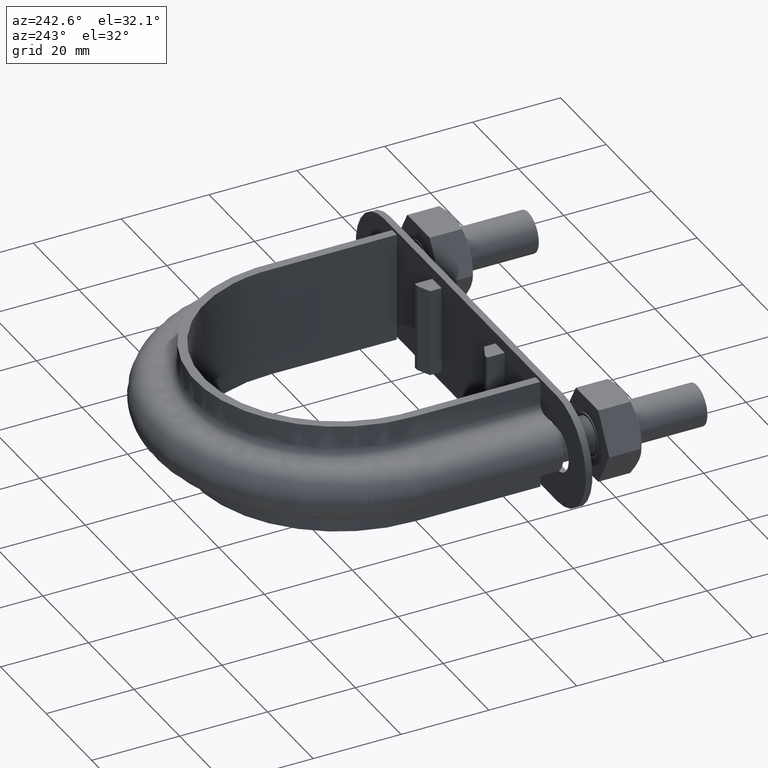
[diagram: clean part render]
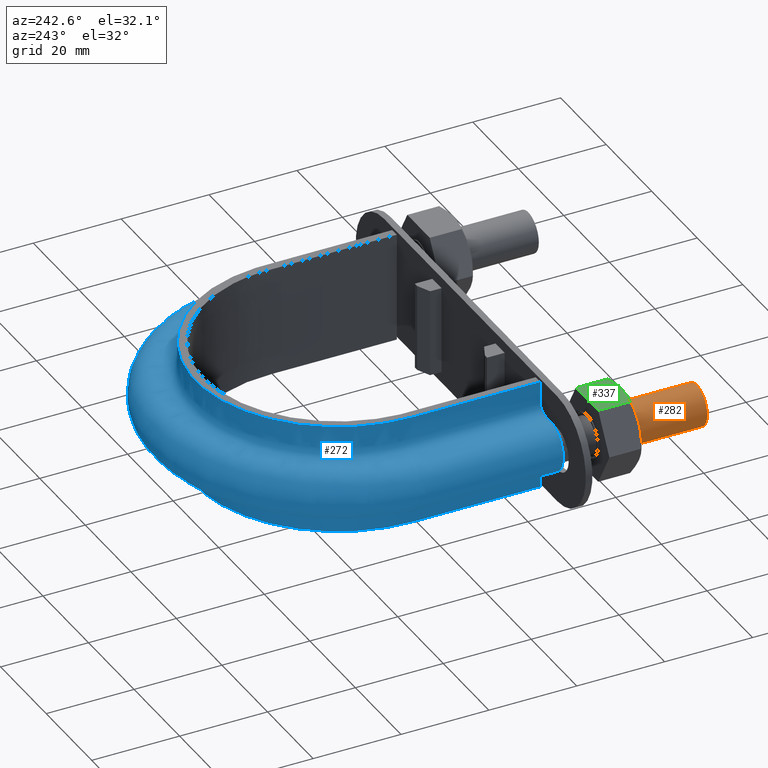
[diagram: same view with three faces highlighted in distinct colors, each labeled with its STEP entity id]
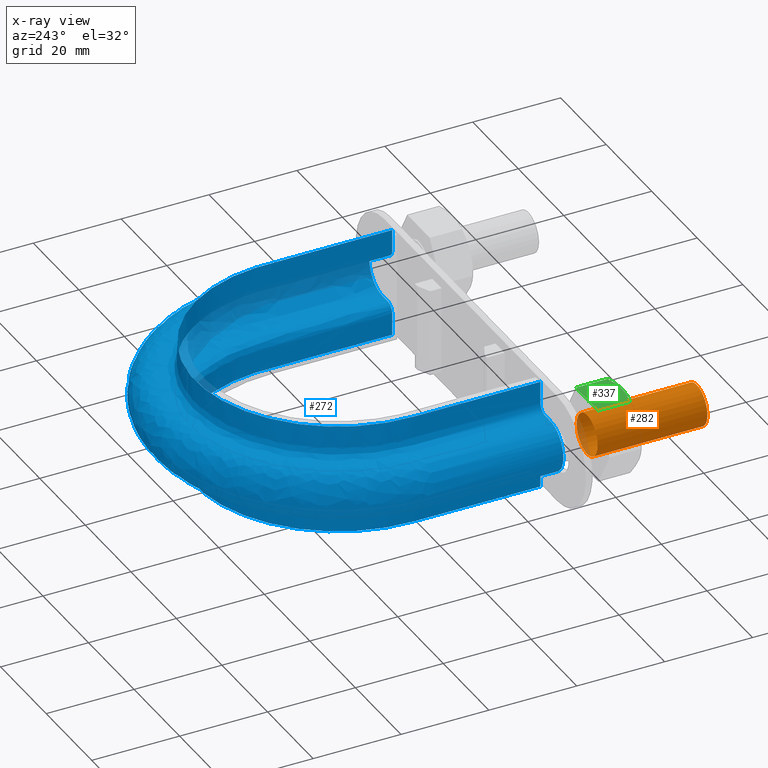
[diagram: x-ray of the same camera — body ghosted, the three highlighted faces saturated]
A machine part, auxiliary view with three faces highlighted in distinct colors.
The next image is the same camera in x-ray (body ghosted, the three faces saturated) — at least one of them is partly hidden behind the body in this view.
Their STEP definitions:

[orange] entity #282 — the highlighted cylindrical surface (bore or boss wall) has radius 4.6 mm, axis along (0, 1, -0).
#282 = ADVANCED_FACE( '', ( #416, #417 ), #418, .T. );
#416 = FACE_OUTER_BOUND( '', #1494, .T. );
#417 = FACE_OUTER_BOUND( '', #1495, .T. );
#418 = CYLINDRICAL_SURFACE( '', #1496, 4.60000000000000 );
#1494 = EDGE_LOOP( '', ( #1829 ) );
#1495 = EDGE_LOOP( '', ( #1830 ) );
#1496 = AXIS2_PLACEMENT_3D( '', #1831, #1832, #1833 );
#1829 = ORIENTED_EDGE( '', *, *, #2563, .T. );
#1830 = ORIENTED_EDGE( '', *, *, #2564, .F. );
#1831 = CARTESIAN_POINT( '', ( -37.0000000000000, 25.0000000000000, -1.56749613289264E-015 ) );
#1832 = DIRECTION( '', ( 2.44921270764475E-016, 1.00000000000000, -6.12303176911189E-017 ) );
#1833 = DIRECTION( '', ( 1.00000000000000, -2.44921270764475E-016, 0.000000000000000 ) );
#2563 = EDGE_CURVE( '', #2825, #2825, #2826, .T. );
#2564 = EDGE_CURVE( '', #2827, #2827, #2828, .T. );
#2825 = VERTEX_POINT( '', #3460 );
#2826 = CIRCLE( '', #3461, 4.60000000000000 );
#2827 = VERTEX_POINT( '', #3462 );
#2828 = CIRCLE( '', #3463, 4.60000000000000 );
#3460 = CARTESIAN_POINT( '', ( -32.4000000000000, 25.0000000000000, -1.56749613289264E-015 ) );
#3461 = AXIS2_PLACEMENT_3D( '', #4060, #4061, #4062 );
#3462 = CARTESIAN_POINT( '', ( -32.4000000000000, 7.93544917276900E-015, -3.67381906146716E-017 ) );
#3463 = AXIS2_PLACEMENT_3D( '', #4063, #4064, #4065 );
#4060 = CARTESIAN_POINT( '', ( -37.0000000000000, 25.0000000000000, -1.56749613289264E-015 ) );
#4061 = DIRECTION( '', ( -2.44921270764475E-016, -1.00000000000000, 6.12303176911189E-017 ) );
#4062 = DIRECTION( '', ( 1.00000000000000, -2.44921270764475E-016, 0.000000000000000 ) );
#4063 = CARTESIAN_POINT( '', ( -37.0000000000000, 9.06208701828559E-015, -3.67381906146716E-017 ) );
#4064 = DIRECTION( '', ( -2.44921270764475E-016, -1.00000000000000, 6.12303176911189E-017 ) );
#4065 = DIRECTION( '', ( 1.00000000000000, -2.44921270764475E-016, 0.000000000000000 ) );

[blue] entity #272 — the highlighted face is a freeform B-spline surface patch.
#272 = ADVANCED_FACE( '', ( #392 ), #393, .F. );
#392 = FACE_OUTER_BOUND( '', #795, .T. );
#393 = B_SPLINE_SURFACE_WITH_KNOTS( '', 3, 3, ( ( #796, #797, #798, #799, #800, #801, #802, #803, #804, #805, #806, #807, #808, #809, #810, #811, #812 ), ( #813, #814, #815, #816, #817, #818, #819, #820, #821, #822, #823, #824, #825, #826, #827, #828, #829 ), ( #830, #831, #832, #833, #834, #835, #836, #837, #838, #839, #840, #841, #842, #843, #844, #845, #846 ), ( #847, #848, #849, #850, #851, #852, #853, #854, #855, #856, #857, #858, #859, #860, #861, #862, #863 ), ( #864, #865, #866, #867, #868, #869, #870, #871, #872, #873, #874, #875, #876, #877, #878, #879, #880 ), ( #881, #882, #883, #884, #885, #886, #887, #888, #889, #890, #891, #892, #893, #894, #895, #896, #897 ), ( #898, #899, #900, #901, #902, #903, #904, #905, #906, #907, #908, #909, #910, #911, #912, #913, #914 ), ( #915, #916, #917, #918, #919, #920, #921, #922, #923, #924, #925, #926, #927, #928, #929, #930, #931 ), ( #932, #933, #934, #935, #936, #937, #938, #939, #940, #941, #942, #943, #944, #945, #946, #947, #948 ), ( #949, #950, #951, #952, #953, #954, #955, #956, #957, #958, #959, #960, #961, #962, #963, #964, #965 ), ( #966, #967, #968, #969, #970, #971, #972, #973, #974, #975, #976, #977, #978, #979, #980, #981, #982 ), ( #983, #984, #985, #986, #987, #988, #989, #990, #991, #992, #993, #994, #995, #996, #997, #998, #999 ), ( #1000, #1001, #1002, #1003, #1004, #1005, #1006, #1007, #1008, #1009, #1010, #1011, #1012, #1013, #1014, #1015, #1016 ), ( #1017, #1018, #1019, #1020, #1021, #1022, #1023, #1024, #1025, #1026, #1027, #1028, #1029, #1030, #1031, #1032, #1033 ), ( #1034, #1035, #1036, #1037, #1038, #1039, #1040, #1041, #1042, #1043, #1044, #1045, #1046, #1047, #1048, #1049, #1050 ), ( #1051, #1052, #1053, #1054, #1055, #1056, #1057, #1058, #1059, #1060, #1061, #1062, #1063, #1064, #1065, #1066, #1067 ), ( #1068, #1069, #1070, #1071, #1072, #1073, #1074, #1075, #1076, #1077, #1078, #1079, #1080, #1081, #1082, #1083, #1084 ), ( #1085, #1086, #1087, #1088, #1089, #1090, #1091, #1092, #1093, #1094, #1095, #1096, #1097, #1098, #1099, #1100, #1101 ), ( #1102, #1103, #1104, #1105, #1106, #1107, #1108, #1109, #1110, #1111, #1112, #1113, #1114, #1115, #1116, #1117, #1118 ), ( #1119, #1120, #1121, #1122, #1123, #1124, #1125, #1126, #1127, #1128, #1129, #1130, #1131, #1132, #1133, #1134, #1135 ), ( #1136, #1137, #1138, #1139, #1140, #1141, #1142, #1143, #1144, #1145, #1146, #1147, #1148, #1149, #1150, #1151, #1152 ), ( #1153, #1154, #1155, #1156, #1157, #1158, #1159, #1160, #1161, #1162, #1163, #1164, #1165, #1166, #1167, #1168, #1169 ), ( #1170, #1171, #1172, #1173, #1174, #1175, #1176, #1177, #1178, #1179, #1180, #1181, #1182, #1183, #1184, #1185, #1186 ), ( #1187, #1188, #1189, #1190, #1191, #1192, #1193, #1194, #1195, #1196, #1197, #1198, #1199, #1200, #1201, #1202, #1203 ), ( #1204, #1205, #1206, #1207, #1208, #1209, #1210, #1211, #1212, #1213, #1214, #1215, #1216, #1217, #1218, #1219, #1220 ), ( #1221, #1222, #1223, #1224, #1225, #1226, #1227, #1228, #1229, #1230, #1231, #1232, #1233, #1234, #1235, #1236, #1237 ), ( #1238, #1239, #1240, #1241, #1242, #1243, #1244, #1245, #1246, #1247, #1248, #1249, #1250, #1251, #1252, #1253, #1254 ), ( #1255, #1256, #1257, #1258, #1259, #1260, #1261, #1262, #1263, #1264, #1265, #1266, #1267, #1268, #1269, #1270, #1271 ), ( #1272, #1273, #1274, #1275, #1276, #1277, #1278, #1279, #1280, #1281, #1282, #1283, #1284, #1285, #1286, #1287, #1288 ), ( #1289, #1290, #1291, #1292, #1293, #1294, #1295, #1296, #1297, #1298, #1299, #1300, #1301, #1302, #1303, #1304, #1305 ), ( #1306, #1307, #1308, #1309, #1310, #1311, #1312, #1313, #1314, #1315, #1316, #1317, #1318, #1319, #1320, #1321, #1322 ) ), .UNSPECIFIED., .F., .F., .F., ( 4, 3, 1, 1, 1, 3, 3, 1, 1, 1, 3, 3, 1, 1, 1, 3, 4 ), ( 4, 3, 1, 1, 1, 1, 1, 1, 1, 3, 4 ), ( 0.105263157894737, 0.157894736842105, 0.210526315789474, 0.263157894736842, 0.315789473684211, 0.368421052631579, 0.421052631578947, 0.473684210526316, 0.526315789473684, 0.578947368421053, 0.631578947368421, 0.684210526315789, 0.736842105263158, 0.789473684210526, 0.842105263157895, 0.894736842105263, 0.947368421052632 ), ( 0.000000000000000, 1.00000000000000, 1.50000000000000, 2.00000000000000, 3.00000000000000, 4.00000000000000, 5.00000000000000, 6.00000000000000, 6.50000000000000, 7.00000000000000, 8.00000000000000 ), .UNSPECIFIED. );
#795 = EDGE_LOOP( '', ( #1757, #1758, #1759, #1760 ) );
#796 = CARTESIAN_POINT( '', ( -32.5000000000000, 29.4000000000000, 12.5000000000000 ) );
#797 = CARTESIAN_POINT( '', ( -32.5000000000000, 40.4333333333333, 12.5000000000000 ) );
#798 = CARTESIAN_POINT( '', ( -32.5000000000000, 51.4666666666667, 12.5000000000000 ) );
#799 = CARTESIAN_POINT( '', ( -32.5000000000000, 62.5000000000000, 12.5000000000000 ) );
#800 = CARTESIAN_POINT( '', ( -32.5000000000000, 65.3255423698130, 12.5000000000000 ) );
#801 = CARTESIAN_POINT( '', ( -31.7387347919768, 71.0086177593115, 12.5000000000000 ) );
#802 = CARTESIAN_POINT( '', ( -27.3871545291852, 81.5827316923998, 12.5000000000000 ) );
#803 = CARTESIAN_POINT( '', ( -17.0093196223626, 91.9623259718442, 12.5000000000000 ) );
#804 = CARTESIAN_POINT( '', ( 2.74322693908899E-014, 96.5188370140779, 12.5000000000000 ) );
#805 = CARTESIAN_POINT( '', ( 17.0093196223626, 91.9623259718442, 12.5000000000000 ) );
#806 = CARTESIAN_POINT( '', ( 27.3871545291853, 81.5827316923997, 12.5000000000000 ) );
#807 = CARTESIAN_POINT( '', ( 31.7387347919769, 71.0086177593115, 12.5000000000000 ) );
#808 = CARTESIAN_POINT( '', ( 32.5000000000000, 65.3255423698130, 12.5000000000000 ) );
#809 = CARTESIAN_POINT( '', ( 32.5000000000000, 62.5000000000000, 12.5000000000000 ) );
#810 = CARTESIAN_POINT( '', ( 32.5000000000000, 51.4666666666666, 12.5000000000000 ) );
#811 = CARTESIAN_POINT( '', ( 32.5000000000000, 40.4333333333333, 12.5000000000000 ) );
#812 = CARTESIAN_POINT( '', ( 32.5000000000000, 29.4000000000000, 12.5000000000000 ) );
#813 = CARTESIAN_POINT( '', ( -32.5000000000000, 29.4000000000000, 10.8666666666667 ) );
#814 = CARTESIAN_POINT( '', ( -32.5000000000000, 40.4333333333333, 10.8666666666667 ) );
#815 = CARTESIAN_POINT( '', ( -32.5000000000000, 51.4666666666667, 10.8666666666667 ) );
#816 = CARTESIAN_POINT( '', ( -32.5000000000000, 62.5000000000000, 10.8666666666667 ) );
#817 = CARTESIAN_POINT( '', ( -32.5000000000000, 65.3255423698130, 10.8666666666667 ) );
#818 = CARTESIAN_POINT( '', ( -31.7387347919768, 71.0086177593115, 10.8666666666667 ) );
#819 = CARTESIAN_POINT( '', ( -27.3871545291852, 81.5827316923998, 10.8666666666667 ) );
#820 = CARTESIAN_POINT( '', ( -17.0093196223626, 91.9623259718442, 10.8666666666667 ) );
#821 = CARTESIAN_POINT( '', ( 2.74322693908899E-014, 96.5188370140779, 10.8666666666667 ) );
#822 = CARTESIAN_POINT( '', ( 17.0093196223626, 91.9623259718442, 10.8666666666667 ) );
#823 = CARTESIAN_POINT( '', ( 27.3871545291853, 81.5827316923997, 10.8666666666667 ) );
#824 = CARTESIAN_POINT( '', ( 31.7387347919769, 71.0086177593115, 10.8666666666667 ) );
#825 = CARTESIAN_POINT( '', ( 32.5000000000000, 65.3255423698130, 10.8666666666667 ) );
#826 = CARTESIAN_POINT( '', ( 32.5000000000000, 62.5000000000000, 10.8666666666667 ) );
#827 = CARTESIAN_POINT( '', ( 32.5000000000000, 51.4666666666666, 10.8666666666667 ) );
#828 = CARTESIAN_POINT( '', ( 32.5000000000000, 40.4333333333333, 10.8666666666667 ) );
#829 = CARTESIAN_POINT( '', ( 32.5000000000000, 29.4000000000000, 10.8666666666667 ) );
#830 = CARTESIAN_POINT( '', ( -32.5000000000000, 29.4000000000000, 9.23333333333332 ) );
#831 = CARTESIAN_POINT( '', ( -32.5000000000000, 40.4333333333333, 9.23333333333332 ) );
#832 = CARTESIAN_POINT( '', ( -32.5000000000000, 51.4666666666667, 9.23333333333332 ) );
#833 = CARTESIAN_POINT( '', ( -32.5000000000000, 62.5000000000000, 9.23333333333332 ) );
#834 = CARTESIAN_POINT( '', ( -32.5000000000000, 65.3255423698130, 9.23333333333332 ) );
#835 = CARTESIAN_POINT( '', ( -31.7387347919768, 71.0086177593115, 9.23333333333332 ) );
#836 = CARTESIAN_POINT( '', ( -27.3871545291852, 81.5827316923998, 9.23333333333333 ) );
#837 = CARTESIAN_POINT( '', ( -17.0093196223626, 91.9623259718442, 9.23333333333332 ) );
#838 = CARTESIAN_POINT( '', ( 2.13607372249711E-014, 96.5188370140779, 9.23333333333332 ) );
#839 = CARTESIAN_POINT( '', ( 17.0093196223626, 91.9623259718442, 9.23333333333332 ) );
#840 = CARTESIAN_POINT( '', ( 27.3871545291852, 81.5827316923997, 9.23333333333333 ) );
#841 = CARTESIAN_POINT( '', ( 31.7387347919769, 71.0086177593115, 9.23333333333332 ) );
#842 = CARTESIAN_POINT( '', ( 32.5000000000000, 65.3255423698130, 9.23333333333332 ) );
#843 = CARTESIAN_POINT( '', ( 32.5000000000000, 62.5000000000000, 9.23333333333332 ) );
#844 = CARTESIAN_POINT( '', ( 32.5000000000000, 51.4666666666666, 9.23333333333332 ) );
#845 = CARTESIAN_POINT( '', ( 32.5000000000000, 40.4333333333333, 9.23333333333332 ) );
#846 = CARTESIAN_POINT( '', ( 32.5000000000000, 29.4000000000000, 9.23333333333332 ) );
#847 = CARTESIAN_POINT( '', ( -32.5000000000000, 29.4000000000000, 7.59999999999998 ) );
#848 = CARTESIAN_POINT( '', ( -32.5000000000000, 40.4333333333333, 7.59999999999998 ) );
#849 = CARTESIAN_POINT( '', ( -32.5000000000000, 51.4666666666667, 7.59999999999998 ) );
#850 = CARTESIAN_POINT( '', ( -32.5000000000000, 62.5000000000000, 7.59999999999998 ) );
#851 = CARTESIAN_POINT( '', ( -32.5000000000000, 65.3255423698130, 7.59999999999998 ) );
#852 = CARTESIAN_POINT( '', ( -31.7387347919768, 71.0086177593115, 7.59999999999998 ) );
#853 = CARTESIAN_POINT( '', ( -27.3871545291852, 81.5827316923998, 7.59999999999999 ) );
#854 = CARTESIAN_POINT( '', ( -17.0093196223626, 91.9623259718442, 7.59999999999998 ) );
#855 = CARTESIAN_POINT( '', ( 2.04933754869827E-014, 96.5188370140779, 7.59999999999999 ) );
#856 = CARTESIAN_POINT( '', ( 17.0093196223626, 91.9623259718442, 7.59999999999998 ) );
#857 = CARTESIAN_POINT( '', ( 27.3871545291853, 81.5827316923997, 7.59999999999999 ) );
#858 = CARTESIAN_POINT( '', ( 31.7387347919769, 71.0086177593115, 7.59999999999998 ) );
#859 = CARTESIAN_POINT( '', ( 32.5000000000000, 65.3255423698130, 7.59999999999998 ) );
#860 = CARTESIAN_POINT( '', ( 32.5000000000000, 62.5000000000000, 7.59999999999998 ) );
#861 = CARTESIAN_POINT( '', ( 32.5000000000000, 51.4666666666666, 7.59999999999998 ) );
#862 = CARTESIAN_POINT( '', ( 32.5000000000000, 40.4333333333333, 7.59999999999998 ) );
#863 = CARTESIAN_POINT( '', ( 32.5000000000000, 29.4000000000000, 7.59999999999998 ) );
#864 = CARTESIAN_POINT( '', ( -32.5000000000000, 29.4000000000000, 7.33823584172332 ) );
#865 = CARTESIAN_POINT( '', ( -32.5000000000000, 40.4333333333333, 7.33823584172332 ) );
#866 = CARTESIAN_POINT( '', ( -32.5000000000000, 51.4666666666667, 7.33823584172332 ) );
#867 = CARTESIAN_POINT( '', ( -32.5000000000000, 62.5000000000000, 7.33823584172332 ) );
#868 = CARTESIAN_POINT( '', ( -32.5000000000000, 65.3255423698130, 7.33823584172332 ) );
#869 = CARTESIAN_POINT( '', ( -31.7387347919768, 71.0086177593115, 7.33823584172331 ) );
#870 = CARTESIAN_POINT( '', ( -27.3871545291852, 81.5827316923998, 7.33823584172332 ) );
#871 = CARTESIAN_POINT( '', ( -17.0093196223626, 91.9623259718442, 7.33823584172331 ) );
#872 = CARTESIAN_POINT( '', ( 1.96260137489943E-014, 96.5188370140779, 7.33823584172332 ) );
#873 = CARTESIAN_POINT( '', ( 17.0093196223626, 91.9623259718442, 7.33823584172331 ) );
#874 = CARTESIAN_POINT( '', ( 27.3871545291852, 81.5827316923997, 7.33823584172332 ) );
#875 = CARTESIAN_POINT( '', ( 31.7387347919769, 71.0086177593115, 7.33823584172331 ) );
#876 = CARTESIAN_POINT( '', ( 32.5000000000000, 65.3255423698130, 7.33823584172332 ) );
#877 = CARTESIAN_POINT( '', ( 32.5000000000000, 62.5000000000000, 7.33823584172332 ) );
#878 = CARTESIAN_POINT( '', ( 32.5000000000000, 51.4666666666666, 7.33823584172332 ) );
#879 = CARTESIAN_POINT( '', ( 32.5000000000000, 40.4333333333333, 7.33823584172332 ) );
#880 = CARTESIAN_POINT( '', ( 32.5000000000000, 29.4000000000000, 7.33823584172332 ) );
#881 = CARTESIAN_POINT( '', ( -32.6041362568359, 29.4000000000000, 6.81470752516999 ) );
#882 = CARTESIAN_POINT( '', ( -32.6041362568359, 40.4333333333333, 6.81470752516999 ) );
#883 = CARTESIAN_POINT( '', ( -32.6041362568359, 51.4666666666667, 6.81470752516999 ) );
#884 = CARTESIAN_POINT( '', ( -32.6041362568359, 62.5000000000000, 6.81470752516999 ) );
#885 = CARTESIAN_POINT( '', ( -32.6041362568359, 65.3348434451203, 6.81470752516999 ) );
#886 = CARTESIAN_POINT( '', ( -31.8404751803345, 71.0357806771154, 6.81470752516999 ) );
#887 = CARTESIAN_POINT( '', ( -27.4748832731721, 81.6439345252043, 6.81470752517000 ) );
#888 = CARTESIAN_POINT( '', ( -17.0638286428161, 92.0567078138533, 6.81470752516999 ) );
#889 = CARTESIAN_POINT( '', ( 1.96393636070914E-014, 96.6278504783272, 6.81470752516999 ) );
#890 = CARTESIAN_POINT( '', ( 17.0638286428161, 92.0567078138533, 6.81470752516999 ) );
#891 = CARTESIAN_POINT( '', ( 27.4748832731721, 81.6439345252043, 6.81470752517000 ) );
#892 = CARTESIAN_POINT( '', ( 31.8404751803345, 71.0357806771154, 6.81470752516999 ) );
#893 = CARTESIAN_POINT( '', ( 32.6041362568359, 65.3348434451203, 6.81470752516999 ) );
#894 = CARTESIAN_POINT( '', ( 32.6041362568359, 62.5000000000000, 6.81470752516999 ) );
#895 = CARTESIAN_POINT( '', ( 32.6041362568359, 51.4666666666666, 6.81470752516999 ) );
#896 = CARTESIAN_POINT( '', ( 32.6041362568359, 40.4333333333333, 6.81470752516999 ) );
#897 = CARTESIAN_POINT( '', ( 32.6041362568359, 29.4000000000000, 6.81470752516999 ) );
#898 = CARTESIAN_POINT( '', ( -33.0489687109389, 29.4000000000000, 6.14896871093886 ) );
#899 = CARTESIAN_POINT( '', ( -33.0489687109389, 40.4333333333333, 6.14896871093886 ) );
#900 = CARTESIAN_POINT( '', ( -33.0489687109389, 51.4666666666667, 6.14896871093886 ) );
#901 = CARTESIAN_POINT( '', ( -33.0489687109389, 62.5000000000000, 6.14896871093886 ) );
#902 = CARTESIAN_POINT( '', ( -33.0489687109389, 65.3745742774016, 6.14896871093886 ) );
#903 = CARTESIAN_POINT( '', ( -32.2750733501712, 71.1518108452281, 6.14896871093886 ) );
#904 = CARTESIAN_POINT( '', ( -27.8496287620996, 81.9053709080906, 6.14896871093886 ) );
#905 = CARTESIAN_POINT( '', ( -17.2966714784992, 92.4598729330860, 6.14896871093886 ) );
#906 = CARTESIAN_POINT( '', ( 1.96963893762110E-014, 97.0935165998653, 6.14896871093886 ) );
#907 = CARTESIAN_POINT( '', ( 17.2966714784992, 92.4598729330860, 6.14896871093885 ) );
#908 = CARTESIAN_POINT( '', ( 27.8496287620997, 81.9053709080905, 6.14896871093886 ) );
#909 = CARTESIAN_POINT( '', ( 32.2750733501712, 71.1518108452281, 6.14896871093885 ) );
#910 = CARTESIAN_POINT( '', ( 33.0489687109389, 65.3745742774016, 6.14896871093886 ) );
#911 = CARTESIAN_POINT( '', ( 33.0489687109389, 62.5000000000000, 6.14896871093886 ) );
#912 = CARTESIAN_POINT( '', ( 33.0489687109389, 51.4666666666666, 6.14896871093886 ) );
#913 = CARTESIAN_POINT( '', ( 33.0489687109389, 40.4333333333333, 6.14896871093886 ) );
#914 = CARTESIAN_POINT( '', ( 33.0489687109389, 29.4000000000000, 6.14896871093886 ) );
#915 = CARTESIAN_POINT( '', ( -33.7147075251700, 29.4000000000000, 5.70413625683589 ) );
#916 = CARTESIAN_POINT( '', ( -33.7147075251700, 40.4333333333333, 5.70413625683589 ) );
#917 = CARTESIAN_POINT( '', ( -33.7147075251700, 51.4666666666667, 5.70413625683589 ) );
#918 = CARTESIAN_POINT( '', ( -33.7147075251700, 62.5000000000000, 5.70413625683589 ) );
#919 = CARTESIAN_POINT( '', ( -33.7147075251700, 65.4340356699494, 5.70413625683589 ) );
#920 = CARTESIAN_POINT( '', ( -32.9254954755926, 71.3254622634686, 5.70413625683589 ) );
#921 = CARTESIAN_POINT( '', ( -28.4104750203614, 82.2966381052885, 5.70413625683589 ) );
#922 = CARTESIAN_POINT( '', ( -17.6451454081780, 93.0632521738353, 5.70413625683589 ) );
#923 = CARTESIAN_POINT( '', ( 1.89143727329073E-014, 97.7904352008374, 5.70413625683589 ) );
#924 = CARTESIAN_POINT( '', ( 17.6451454081780, 93.0632521738352, 5.70413625683589 ) );
#925 = CARTESIAN_POINT( '', ( 28.4104750203615, 82.2966381052885, 5.70413625683589 ) );
#926 = CARTESIAN_POINT( '', ( 32.9254954755927, 71.3254622634686, 5.70413625683589 ) );
#927 = CARTESIAN_POINT( '', ( 33.7147075251700, 65.4340356699494, 5.70413625683589 ) );
#928 = CARTESIAN_POINT( '', ( 33.7147075251700, 62.5000000000000, 5.70413625683589 ) );
#929 = CARTESIAN_POINT( '', ( 33.7147075251700, 51.4666666666666, 5.70413625683589 ) );
#930 = CARTESIAN_POINT( '', ( 33.7147075251700, 40.4333333333333, 5.70413625683589 ) );
#931 = CARTESIAN_POINT( '', ( 33.7147075251700, 29.4000000000000, 5.70413625683589 ) );
#932 = CARTESIAN_POINT( '', ( -34.2382358417233, 29.4000000000000, 5.59999999999998 ) );
#933 = CARTESIAN_POINT( '', ( -34.2382358417233, 40.4333333333333, 5.59999999999998 ) );
#934 = CARTESIAN_POINT( '', ( -34.2382358417233, 51.4666666666667, 5.59999999999998 ) );
#935 = CARTESIAN_POINT( '', ( -34.2382358417233, 62.5000000000000, 5.59999999999998 ) );
#936 = CARTESIAN_POINT( '', ( -34.2382358417233, 65.4807953331612, 5.59999999999998 ) );
#937 = CARTESIAN_POINT( '', ( -33.4369789479273, 71.4620194728654, 5.59999999999998 ) );
#938 = CARTESIAN_POINT( '', ( -28.8515171996013, 82.6043255236767, 5.59999999999999 ) );
#939 = CARTESIAN_POINT( '', ( -17.9191807593812, 93.5377417355075, 5.59999999999998 ) );
#940 = CARTESIAN_POINT( '', ( 2.24509339536872E-014, 98.3384828948313, 5.59999999999998 ) );
#941 = CARTESIAN_POINT( '', ( 17.9191807593812, 93.5377417355075, 5.59999999999998 ) );
#942 = CARTESIAN_POINT( '', ( 28.8515171996013, 82.6043255236767, 5.59999999999999 ) );
#943 = CARTESIAN_POINT( '', ( 33.4369789479274, 71.4620194728654, 5.59999999999998 ) );
#944 = CARTESIAN_POINT( '', ( 34.2382358417234, 65.4807953331612, 5.59999999999998 ) );
#945 = CARTESIAN_POINT( '', ( 34.2382358417234, 62.5000000000000, 5.59999999999998 ) );
#946 = CARTESIAN_POINT( '', ( 34.2382358417234, 51.4666666666666, 5.59999999999998 ) );
#947 = CARTESIAN_POINT( '', ( 34.2382358417234, 40.4333333333333, 5.59999999999998 ) );
#948 = CARTESIAN_POINT( '', ( 34.2382358417234, 29.4000000000000, 5.59999999999998 ) );
#949 = CARTESIAN_POINT( '', ( -34.5000000000000, 29.4000000000000, 5.59999999999998 ) );
#950 = CARTESIAN_POINT( '', ( -34.5000000000000, 40.4333333333333, 5.59999999999998 ) );
#951 = CARTESIAN_POINT( '', ( -34.5000000000000, 51.4666666666667, 5.59999999999998 ) );
#952 = CARTESIAN_POINT( '', ( -34.5000000000000, 62.5000000000000, 5.59999999999998 ) );
#953 = CARTESIAN_POINT( '', ( -34.5000000000000, 65.5041751647671, 5.59999999999998 ) );
#954 = CARTESIAN_POINT( '', ( -33.6927206840947, 71.5302980775637, 5.59999999999998 ) );
#955 = CARTESIAN_POINT( '', ( -29.0720382892212, 82.7581692328708, 5.59999999999999 ) );
#956 = CARTESIAN_POINT( '', ( -18.0561984349828, 93.7749865163436, 5.59999999999998 ) );
#957 = CARTESIAN_POINT( '', ( 2.07497676121235E-014, 98.6125067418282, 5.59999999999998 ) );
#958 = CARTESIAN_POINT( '', ( 18.0561984349828, 93.7749865163436, 5.59999999999998 ) );
#959 = CARTESIAN_POINT( '', ( 29.0720382892212, 82.7581692328708, 5.59999999999999 ) );
#960 = CARTESIAN_POINT( '', ( 33.6927206840947, 71.5302980775638, 5.59999999999998 ) );
#961 = CARTESIAN_POINT( '', ( 34.5000000000000, 65.5041751647671, 5.59999999999998 ) );
#962 = CARTESIAN_POINT( '', ( 34.5000000000000, 62.5000000000000, 5.59999999999998 ) );
#963 = CARTESIAN_POINT( '', ( 34.5000000000000, 51.4666666666666, 5.59999999999998 ) );
#964 = CARTESIAN_POINT( '', ( 34.5000000000000, 40.4333333333333, 5.59999999999998 ) );
#965 = CARTESIAN_POINT( '', ( 34.5000000000000, 29.4000000000000, 5.59999999999998 ) );
#966 = CARTESIAN_POINT( '', ( -35.3333333333333, 29.4000000000000, 5.60000000000000 ) );
#967 = CARTESIAN_POINT( '', ( -35.3333333333333, 40.4333333333333, 5.60000000000000 ) );
#968 = CARTESIAN_POINT( '', ( -35.3333333333333, 51.4666666666667, 5.60000000000000 ) );
#969 = CARTESIAN_POINT( '', ( -35.3333333333333, 62.5000000000000, 5.60000000000000 ) );
#970 = CARTESIAN_POINT( '', ( -35.3333333333333, 65.5786054959979, 5.60000000000000 ) );
#971 = CARTESIAN_POINT( '', ( -34.5068814724771, 71.7476648768355, 5.60000000000000 ) );
#972 = CARTESIAN_POINT( '', ( -29.7740731892362, 83.2479348747338, 5.60000000000000 ) );
#973 = CARTESIAN_POINT( '', ( -18.4923979402412, 94.5302617432183, 5.60000000000000 ) );
#974 = CARTESIAN_POINT( '', ( 2.08565976642655E-014, 99.4848691283908, 5.60000000000000 ) );
#975 = CARTESIAN_POINT( '', ( 18.4923979402412, 94.5302617432183, 5.60000000000000 ) );
#976 = CARTESIAN_POINT( '', ( 29.7740731892362, 83.2479348747338, 5.60000000000000 ) );
#977 = CARTESIAN_POINT( '', ( 34.5068814724771, 71.7476648768355, 5.59999999999999 ) );
#978 = CARTESIAN_POINT( '', ( 35.3333333333334, 65.5786054959979, 5.60000000000000 ) );
#979 = CARTESIAN_POINT( '', ( 35.3333333333334, 62.5000000000000, 5.60000000000000 ) );
#980 = CARTESIAN_POINT( '', ( 35.3333333333334, 51.4666666666666, 5.60000000000000 ) );
#981 = CARTESIAN_POINT( '', ( 35.3333333333334, 40.4333333333333, 5.60000000000000 ) );
#982 = CARTESIAN_POINT( '', ( 35.3333333333334, 29.4000000000000, 5.60000000000000 ) );
#983 = CARTESIAN_POINT( '', ( -36.1666666666667, 29.4000000000000, 5.60000000000000 ) );
#984 = CARTESIAN_POINT( '', ( -36.1666666666667, 40.4333333333333, 5.60000000000000 ) );
#985 = CARTESIAN_POINT( '', ( -36.1666666666667, 51.4666666666667, 5.60000000000000 ) );
#986 = CARTESIAN_POINT( '', ( -36.1666666666667, 62.5000000000000, 5.60000000000000 ) );
#987 = CARTESIAN_POINT( '', ( -36.1666666666667, 65.6530358272288, 5.60000000000000 ) );
#988 = CARTESIAN_POINT( '', ( -35.3210422608595, 71.9650316761073, 5.60000000000000 ) );
#989 = CARTESIAN_POINT( '', ( -30.4761080892512, 83.7377005165967, 5.60000000000000 ) );
#990 = CARTESIAN_POINT( '', ( -18.9285974454996, 95.2855369700931, 5.60000000000000 ) );
#991 = CARTESIAN_POINT( '', ( 2.09634277164076E-014, 100.357231514953, 5.60000000000000 ) );
#992 = CARTESIAN_POINT( '', ( 18.9285974454996, 95.2855369700931, 5.60000000000000 ) );
#993 = CARTESIAN_POINT( '', ( 30.4761080892512, 83.7377005165967, 5.60000000000000 ) );
#994 = CARTESIAN_POINT( '', ( 35.3210422608596, 71.9650316761073, 5.59999999999999 ) );
#995 = CARTESIAN_POINT( '', ( 36.1666666666667, 65.6530358272288, 5.60000000000000 ) );
#996 = CARTESIAN_POINT( '', ( 36.1666666666667, 62.5000000000000, 5.60000000000000 ) );
#997 = CARTESIAN_POINT( '', ( 36.1666666666667, 51.4666666666666, 5.60000000000000 ) );
#998 = CARTESIAN_POINT( '', ( 36.1666666666667, 40.4333333333333, 5.60000000000000 ) );
#999 = CARTESIAN_POINT( '', ( 36.1666666666667, 29.4000000000000, 5.60000000000000 ) );
#1000 = CARTESIAN_POINT( '', ( -37.0000000000000, 29.4000000000000, 5.60000000000000 ) );
#1001 = CARTESIAN_POINT( '', ( -37.0000000000000, 40.4333333333333, 5.60000000000000 ) );
#1002 = CARTESIAN_POINT( '', ( -37.0000000000000, 51.4666666666667, 5.60000000000000 ) );
#1003 = CARTESIAN_POINT( '', ( -37.0000000000000, 62.5000000000000, 5.60000000000000 ) );
#1004 = CARTESIAN_POINT( '', ( -37.0000000000000, 65.7274661584597, 5.60000000000000 ) );
#1005 = CARTESIAN_POINT( '', ( -36.1352030492419, 72.1823984753790, 5.60000000000000 ) );
#1006 = CARTESIAN_POINT( '', ( -31.1781429892662, 84.2274661584596, 5.60000000000000 ) );
#1007 = CARTESIAN_POINT( '', ( -19.3647969507580, 96.0408121969678, 5.60000000000000 ) );
#1008 = CARTESIAN_POINT( '', ( 1.76008108165960E-014, 101.229593901516, 5.60000000000000 ) );
#1009 = CARTESIAN_POINT( '', ( 19.3647969507581, 96.0408121969678, 5.60000000000000 ) );
#1010 = CARTESIAN_POINT( '', ( 31.1781429892662, 84.2274661584596, 5.60000000000000 ) );
#1011 = CARTESIAN_POINT( '', ( 36.1352030492420, 72.1823984753790, 5.59999999999999 ) );
#1012 = CARTESIAN_POINT( '', ( 37.0000000000000, 65.7274661584597, 5.60000000000000 ) );
#1013 = CARTESIAN_POINT( '', ( 37.0000000000000, 62.5000000000000, 5.60000000000000 ) );
#1014 = CARTESIAN_POINT( '', ( 37.0000000000000, 51.4666666666666, 5.60000000000000 ) );
#1015 = CARTESIAN_POINT( '', ( 37.0000000000000, 40.4333333333333, 5.60000000000000 ) );
#1016 = CARTESIAN_POINT( '', ( 37.0000000000000, 29.4000000000000, 5.60000000000000 ) );
#1017 = CARTESIAN_POINT( '', ( -38.4627416997969, 29.4000000000000, 5.60000000000000 ) );
#1018 = CARTESIAN_POINT( '', ( -38.4627416997969, 40.4333333333333, 5.60000000000000 ) );
#1019 = CARTESIAN_POINT( '', ( -38.4627416997969, 51.4666666666667, 5.60000000000000 ) );
#1020 = CARTESIAN_POINT( '', ( -38.4627416997969, 62.5000000000000, 5.60000000000000 ) );
#1021 = CARTESIAN_POINT( '', ( -38.4627416997969, 65.8581129775250, 5.60000000000000 ) );
#1022 = CARTESIAN_POINT( '', ( -37.5642913718498, 72.5639402531145, 5.59999999999999 ) );
#1023 = CARTESIAN_POINT( '', ( -32.4104178568238, 85.0871469114365, 5.60000000000000 ) );
#1024 = CARTESIAN_POINT( '', ( -20.1304535976848, 97.3665392799758, 5.59999999999999 ) );
#1025 = CARTESIAN_POINT( '', ( 1.86556902810559E-014, 102.760842909708, 5.60000000000000 ) );
#1026 = CARTESIAN_POINT( '', ( 20.1304535976848, 97.3665392799757, 5.59999999999999 ) );
#1027 = CARTESIAN_POINT( '', ( 32.4104178568238, 85.0871469114365, 5.60000000000000 ) );
#1028 = CARTESIAN_POINT( '', ( 37.5642913718498, 72.5639402531144, 5.59999999999999 ) );
#1029 = CARTESIAN_POINT( '', ( 38.4627416997970, 65.8581129775250, 5.60000000000000 ) );
#1030 = CARTESIAN_POINT( '', ( 38.4627416997970, 62.5000000000000, 5.60000000000000 ) );
#1031 = CARTESIAN_POINT( '', ( 38.4627416997970, 51.4666666666666, 5.60000000000000 ) );
#1032 = CARTESIAN_POINT( '', ( 38.4627416997970, 40.4333333333333, 5.60000000000000 ) );
#1033 = CARTESIAN_POINT( '', ( 38.4627416997970, 29.4000000000000, 5.60000000000000 ) );
#1034 = CARTESIAN_POINT( '', ( -41.3882250993908, 29.4000000000000, 4.38822509939085 ) );
#1035 = CARTESIAN_POINT( '', ( -41.3882250993908, 40.4333333333333, 4.38822509939085 ) );
#1036 = CARTESIAN_POINT( '', ( -41.3882250993908, 51.4666666666667, 4.38822509939085 ) );
#1037 = CARTESIAN_POINT( '', ( -41.3882250993908, 62.5000000000000, 4.38822509939085 ) );
#1038 = CARTESIAN_POINT( '', ( -41.3882250993908, 66.1194066156556, 4.38822509939085 ) );
#1039 = CARTESIAN_POINT( '', ( -40.4224680170654, 73.3270238085853, 4.38822509939085 ) );
#1040 = CARTESIAN_POINT( '', ( -34.8749675919391, 86.8065084173903, 4.38822509939085 ) );
#1041 = CARTESIAN_POINT( '', ( -21.6617668915383, 100.017993445992, 4.38822509939085 ) );
#1042 = CARTESIAN_POINT( '', ( 1.90307257339990E-014, 105.823340926090, 4.38822509939085 ) );
#1043 = CARTESIAN_POINT( '', ( 21.6617668915383, 100.017993445992, 4.38822509939085 ) );
#1044 = CARTESIAN_POINT( '', ( 34.8749675919392, 86.8065084173903, 4.38822509939085 ) );
#1045 = CARTESIAN_POINT( '', ( 40.4224680170655, 73.3270238085853, 4.38822509939085 ) );
#1046 = CARTESIAN_POINT( '', ( 41.3882250993909, 66.1194066156556, 4.38822509939085 ) );
#1047 = CARTESIAN_POINT( '', ( 41.3882250993909, 62.5000000000000, 4.38822509939085 ) );
#1048 = CARTESIAN_POINT( '', ( 41.3882250993909, 51.4666666666666, 4.38822509939085 ) );
#1049 = CARTESIAN_POINT( '', ( 41.3882250993909, 40.4333333333333, 4.38822509939085 ) );
#1050 = CARTESIAN_POINT( '', ( 41.3882250993909, 29.4000000000000, 4.38822509939085 ) );
#1051 = CARTESIAN_POINT( '', ( -43.2058874503046, 29.4000000000000, -1.07693261045861E-015 ) );
#1052 = CARTESIAN_POINT( '', ( -43.2058874503046, 40.4333333333333, -1.07693261045861E-015 ) );
#1053 = CARTESIAN_POINT( '', ( -43.2058874503046, 51.4666666666667, -1.07693261045861E-015 ) );
#1054 = CARTESIAN_POINT( '', ( -43.2058874503046, 62.5000000000000, -1.07693261045861E-015 ) );
#1055 = CARTESIAN_POINT( '', ( -43.2058874503046, 66.2817536686688, -1.07693261045861E-015 ) );
#1056 = CARTESIAN_POINT( '', ( -42.1983113122250, 73.8011431454352, -1.07693261045861E-015 ) );
#1057 = CARTESIAN_POINT( '', ( -36.4062424800808, 87.8747826989728, -1.07693261045861E-015 ) );
#1058 = CARTESIAN_POINT( '', ( -22.6132029933728, 101.665395859353, -1.07693261045861E-015 ) );
#1059 = CARTESIAN_POINT( '', ( 2.09984663664455E-014, 107.726133245780, -1.07693261045861E-015 ) );
#1060 = CARTESIAN_POINT( '', ( 22.6132029933728, 101.665395859353, -1.07693261045861E-015 ) );
#1061 = CARTESIAN_POINT( '', ( 36.4062424800808, 87.8747826989727, -1.07693261045861E-015 ) );
#1062 = CARTESIAN_POINT( '', ( 42.1983113122250, 73.8011431454352, -1.07693261045861E-015 ) );
#1063 = CARTESIAN_POINT( '', ( 43.2058874503046, 66.2817536686688, -1.07693261045861E-015 ) );
#1064 = CARTESIAN_POINT( '', ( 43.2058874503046, 62.5000000000000, -1.07693261045861E-015 ) );
#1065 = CARTESIAN_POINT( '', ( 43.2058874503046, 51.4666666666666, -1.07693261045861E-015 ) );
#1066 = CARTESIAN_POINT( '', ( 43.2058874503046, 40.4333333333333, -1.07693261045861E-015 ) );
#1067 = CARTESIAN_POINT( '', ( 43.2058874503046, 29.4000000000000, -1.07693261045861E-015 ) );
#1068 = CARTESIAN_POINT( '', ( -41.3882250993908, 29.4000000000000, -4.38822509939086 ) );
#1069 = CARTESIAN_POINT( '', ( -41.3882250993908, 40.4333333333333, -4.38822509939086 ) );
#1070 = CARTESIAN_POINT( '', ( -41.3882250993908, 51.4666666666667, -4.38822509939086 ) );
#1071 = CARTESIAN_POINT( '', ( -41.3882250993908, 62.5000000000000, -4.38822509939086 ) );
#1072 = CARTESIAN_POINT( '', ( -41.3882250993908, 66.1194066156556, -4.38822509939086 ) );
#1073 = CARTESIAN_POINT( '', ( -40.4224680170654, 73.3270238085853, -4.38822509939086 ) );
#1074 = CARTESIAN_POINT( '', ( -34.8749675919391, 86.8065084173903, -4.38822509939086 ) );
#1075 = CARTESIAN_POINT( '', ( -21.6617668915383, 100.017993445992, -4.38822509939086 ) );
#1076 = CARTESIAN_POINT( '', ( 1.90307257339990E-014, 105.823340926090, -4.38822509939086 ) );
#1077 = CARTESIAN_POINT( '', ( 21.6617668915383, 100.017993445992, -4.38822509939086 ) );
#1078 = CARTESIAN_POINT( '', ( 34.8749675919392, 86.8065084173903, -4.38822509939086 ) );
#1079 = CARTESIAN_POINT( '', ( 40.4224680170655, 73.3270238085853, -4.38822509939086 ) );
#1080 = CARTESIAN_POINT( '', ( 41.3882250993909, 66.1194066156556, -4.38822509939086 ) );
#1081 = CARTESIAN_POINT( '', ( 41.3882250993909, 62.5000000000000, -4.38822509939086 ) );
#1082 = CARTESIAN_POINT( '', ( 41.3882250993909, 51.4666666666666, -4.38822509939086 ) );
#1083 = CARTESIAN_POINT( '', ( 41.3882250993909, 40.4333333333333, -4.38822509939086 ) );
#1084 = CARTESIAN_POINT( '', ( 41.3882250993909, 29.4000000000000, -4.38822509939086 ) );
#1085 = CARTESIAN_POINT( '', ( -38.4627416997969, 29.4000000000000, -5.60000000000000 ) );
#1086 = CARTESIAN_POINT( '', ( -38.4627416997969, 40.4333333333333, -5.60000000000000 ) );
#1087 = CARTESIAN_POINT( '', ( -38.4627416997969, 51.4666666666667, -5.60000000000000 ) );
#1088 = CARTESIAN_POINT( '', ( -38.4627416997969, 62.5000000000000, -5.60000000000000 ) );
#1089 = CARTESIAN_POINT( '', ( -38.4627416997969, 65.8581129775250, -5.60000000000000 ) );
#1090 = CARTESIAN_POINT( '', ( -37.5642913718498, 72.5639402531145, -5.60000000000000 ) );
#1091 = CARTESIAN_POINT( '', ( -32.4104178568238, 85.0871469114365, -5.60000000000001 ) );
#1092 = CARTESIAN_POINT( '', ( -20.1304535976848, 97.3665392799758, -5.60000000000000 ) );
#1093 = CARTESIAN_POINT( '', ( 1.86556902810559E-014, 102.760842909708, -5.60000000000000 ) );
#1094 = CARTESIAN_POINT( '', ( 20.1304535976848, 97.3665392799757, -5.60000000000000 ) );
#1095 = CARTESIAN_POINT( '', ( 32.4104178568238, 85.0871469114365, -5.60000000000001 ) );
#1096 = CARTESIAN_POINT( '', ( 37.5642913718498, 72.5639402531144, -5.60000000000000 ) );
#1097 = CARTESIAN_POINT( '', ( 38.4627416997970, 65.8581129775250, -5.60000000000000 ) );
#1098 = CARTESIAN_POINT( '', ( 38.4627416997970, 62.5000000000000, -5.60000000000000 ) );
#1099 = CARTESIAN_POINT( '', ( 38.4627416997970, 51.4666666666666, -5.60000000000000 ) );
#1100 = CARTESIAN_POINT( '', ( 38.4627416997970, 40.4333333333333, -5.60000000000000 ) );
#1101 = CARTESIAN_POINT( '', ( 38.4627416997970, 29.4000000000000, -5.60000000000000 ) );
#1102 = CARTESIAN_POINT( '', ( -37.0000000000000, 29.4000000000000, -5.60000000000000 ) );
#1103 = CARTESIAN_POINT( '', ( -37.0000000000000, 40.4333333333333, -5.60000000000000 ) );
#1104 = CARTESIAN_POINT( '', ( -37.0000000000000, 51.4666666666667, -5.60000000000000 ) );
#1105 = CARTESIAN_POINT( '', ( -37.0000000000000, 62.5000000000000, -5.60000000000000 ) );
#1106 = CARTESIAN_POINT( '', ( -37.0000000000000, 65.7274661584597, -5.60000000000000 ) );
#1107 = CARTESIAN_POINT( '', ( -36.1352030492419, 72.1823984753790, -5.60000000000000 ) );
#1108 = CARTESIAN_POINT( '', ( -31.1781429892662, 84.2274661584596, -5.60000000000001 ) );
#1109 = CARTESIAN_POINT( '', ( -19.3647969507580, 96.0408121969678, -5.60000000000000 ) );
#1110 = CARTESIAN_POINT( '', ( 2.02028960305612E-014, 101.229593901516, -5.60000000000000 ) );
#1111 = CARTESIAN_POINT( '', ( 19.3647969507581, 96.0408121969678, -5.60000000000000 ) );
#1112 = CARTESIAN_POINT( '', ( 31.1781429892662, 84.2274661584596, -5.60000000000001 ) );
#1113 = CARTESIAN_POINT( '', ( 36.1352030492420, 72.1823984753790, -5.60000000000000 ) );
#1114 = CARTESIAN_POINT( '', ( 37.0000000000000, 65.7274661584597, -5.60000000000000 ) );
#1115 = CARTESIAN_POINT( '', ( 37.0000000000000, 62.5000000000000, -5.60000000000000 ) );
#1116 = CARTESIAN_POINT( '', ( 37.0000000000000, 51.4666666666666, -5.60000000000000 ) );
#1117 = CARTESIAN_POINT( '', ( 37.0000000000000, 40.4333333333333, -5.60000000000000 ) );
#1118 = CARTESIAN_POINT( '', ( 37.0000000000000, 29.4000000000000, -5.60000000000000 ) );
#1119 = CARTESIAN_POINT( '', ( -36.1666666666667, 29.4000000000000, -5.60000000000000 ) );
#1120 = CARTESIAN_POINT( '', ( -36.1666666666667, 40.4333333333333, -5.60000000000000 ) );
#1121 = CARTESIAN_POINT( '', ( -36.1666666666667, 51.4666666666667, -5.60000000000000 ) );
#1122 = CARTESIAN_POINT( '', ( -36.1666666666667, 62.5000000000000, -5.60000000000000 ) );
#1123 = CARTESIAN_POINT( '', ( -36.1666666666667, 65.6530358272288, -5.60000000000000 ) );
#1124 = CARTESIAN_POINT( '', ( -35.3210422608595, 71.9650316761073, -5.60000000000000 ) );
#1125 = CARTESIAN_POINT( '', ( -30.4761080892512, 83.7377005165967, -5.60000000000001 ) );
#1126 = CARTESIAN_POINT( '', ( -18.9285974454996, 95.2855369700930, -5.60000000000000 ) );
#1127 = CARTESIAN_POINT( '', ( 1.83613425024424E-014, 100.357231514953, -5.60000000000000 ) );
#1128 = CARTESIAN_POINT( '', ( 18.9285974454996, 95.2855369700931, -5.60000000000000 ) );
#1129 = CARTESIAN_POINT( '', ( 30.4761080892512, 83.7377005165967, -5.60000000000001 ) );
#1130 = CARTESIAN_POINT( '', ( 35.3210422608596, 71.9650316761073, -5.60000000000000 ) );
#1131 = CARTESIAN_POINT( '', ( 36.1666666666667, 65.6530358272288, -5.60000000000000 ) );
#1132 = CARTESIAN_POINT( '', ( 36.1666666666667, 62.5000000000000, -5.60000000000000 ) );
#1133 = CARTESIAN_POINT( '', ( 36.1666666666667, 51.4666666666666, -5.60000000000000 ) );
#1134 = CARTESIAN_POINT( '', ( 36.1666666666667, 40.4333333333333, -5.60000000000000 ) );
#1135 = CARTESIAN_POINT( '', ( 36.1666666666667, 29.4000000000000, -5.60000000000000 ) );
#1136 = CARTESIAN_POINT( '', ( -35.3333333333333, 29.4000000000000, -5.60000000000000 ) );
#1137 = CARTESIAN_POINT( '', ( -35.3333333333333, 40.4333333333333, -5.60000000000000 ) );
#1138 = CARTESIAN_POINT( '', ( -35.3333333333333, 51.4666666666667, -5.60000000000000 ) );
#1139 = CARTESIAN_POINT( '', ( -35.3333333333333, 62.5000000000000, -5.60000000000000 ) );
#1140 = CARTESIAN_POINT( '', ( -35.3333333333333, 65.5786054959979, -5.60000000000000 ) );
#1141 = CARTESIAN_POINT( '', ( -34.5068814724771, 71.7476648768355, -5.60000000000000 ) );
#1142 = CARTESIAN_POINT( '', ( -29.7740731892362, 83.2479348747338, -5.60000000000001 ) );
#1143 = CARTESIAN_POINT( '', ( -18.4923979402412, 94.5302617432183, -5.60000000000000 ) );
#1144 = CARTESIAN_POINT( '', ( 1.99892359262771E-014, 99.4848691283908, -5.60000000000000 ) );
#1145 = CARTESIAN_POINT( '', ( 18.4923979402412, 94.5302617432183, -5.60000000000000 ) );
#1146 = CARTESIAN_POINT( '', ( 29.7740731892362, 83.2479348747338, -5.60000000000001 ) );
#1147 = CARTESIAN_POINT( '', ( 34.5068814724771, 71.7476648768355, -5.60000000000000 ) );
#1148 = CARTESIAN_POINT( '', ( 35.3333333333334, 65.5786054959979, -5.60000000000000 ) );
#1149 = CARTESIAN_POINT( '', ( 35.3333333333334, 62.5000000000000, -5.60000000000000 ) );
#1150 = CARTESIAN_POINT( '', ( 35.3333333333334, 51.4666666666666, -5.60000000000000 ) );
#1151 = CARTESIAN_POINT( '', ( 35.3333333333334, 40.4333333333333, -5.60000000000000 ) );
#1152 = CARTESIAN_POINT( '', ( 35.3333333333334, 29.4000000000000, -5.60000000000000 ) );
#1153 = CARTESIAN_POINT( '', ( -34.5000000000000, 29.4000000000000, -5.60000000000000 ) );
#1154 = CARTESIAN_POINT( '', ( -34.5000000000000, 40.4333333333333, -5.60000000000000 ) );
#1155 = CARTESIAN_POINT( '', ( -34.5000000000000, 51.4666666666667, -5.60000000000000 ) );
#1156 = CARTESIAN_POINT( '', ( -34.5000000000000, 62.5000000000000, -5.60000000000000 ) );
#1157 = CARTESIAN_POINT( '', ( -34.5000000000000, 65.5041751647671, -5.60000000000000 ) );
#1158 = CARTESIAN_POINT( '', ( -33.6927206840947, 71.5302980775637, -5.60000000000000 ) );
#1159 = CARTESIAN_POINT( '', ( -29.0720382892212, 82.7581692328708, -5.60000000000001 ) );
#1160 = CARTESIAN_POINT( '', ( -18.0561984349828, 93.7749865163436, -5.60000000000000 ) );
#1161 = CARTESIAN_POINT( '', ( 1.98824058741351E-014, 98.6125067418282, -5.60000000000000 ) );
#1162 = CARTESIAN_POINT( '', ( 18.0561984349828, 93.7749865163436, -5.60000000000000 ) );
#1163 = CARTESIAN_POINT( '', ( 29.0720382892212, 82.7581692328708, -5.60000000000001 ) );
#1164 = CARTESIAN_POINT( '', ( 33.6927206840947, 71.5302980775637, -5.60000000000000 ) );
#1165 = CARTESIAN_POINT( '', ( 34.5000000000000, 65.5041751647671, -5.60000000000000 ) );
#1166 = CARTESIAN_POINT( '', ( 34.5000000000000, 62.5000000000000, -5.60000000000000 ) );
#1167 = CARTESIAN_POINT( '', ( 34.5000000000000, 51.4666666666666, -5.60000000000000 ) );
#1168 = CARTESIAN_POINT( '', ( 34.5000000000000, 40.4333333333333, -5.60000000000000 ) );
#1169 = CARTESIAN_POINT( '', ( 34.5000000000000, 29.4000000000000, -5.60000000000000 ) );
#1170 = CARTESIAN_POINT( '', ( -34.2382358417234, 29.4000000000000, -5.60000000000000 ) );
#1171 = CARTESIAN_POINT( '', ( -34.2382358417234, 40.4333333333333, -5.60000000000000 ) );
#1172 = CARTESIAN_POINT( '', ( -34.2382358417234, 51.4666666666667, -5.60000000000000 ) );
#1173 = CARTESIAN_POINT( '', ( -34.2382358417234, 62.5000000000000, -5.60000000000000 ) );
#1174 = CARTESIAN_POINT( '', ( -34.2382358417234, 65.4807953331612, -5.60000000000000 ) );
#1175 = CARTESIAN_POINT( '', ( -33.4369789479273, 71.4620194728654, -5.60000000000000 ) );
#1176 = CARTESIAN_POINT( '', ( -28.8515171996013, 82.6043255236767, -5.60000000000001 ) );
#1177 = CARTESIAN_POINT( '', ( -17.9191807593812, 93.5377417355075, -5.60000000000000 ) );
#1178 = CARTESIAN_POINT( '', ( 2.07162104777104E-014, 98.3384828948313, -5.60000000000000 ) );
#1179 = CARTESIAN_POINT( '', ( 17.9191807593812, 93.5377417355075, -5.60000000000000 ) );
#1180 = CARTESIAN_POINT( '', ( 28.8515171996013, 82.6043255236767, -5.60000000000001 ) );
#1181 = CARTESIAN_POINT( '', ( 33.4369789479274, 71.4620194728654, -5.60000000000000 ) );
#1182 = CARTESIAN_POINT( '', ( 34.2382358417234, 65.4807953331612, -5.60000000000000 ) );
#1183 = CARTESIAN_POINT( '', ( 34.2382358417234, 62.5000000000000, -5.60000000000000 ) );
#1184 = CARTESIAN_POINT( '', ( 34.2382358417234, 51.4666666666666, -5.60000000000000 ) );
#1185 = CARTESIAN_POINT( '', ( 34.2382358417234, 40.4333333333333, -5.60000000000000 ) );
#1186 = CARTESIAN_POINT( '', ( 34.2382358417234, 29.4000000000000, -5.60000000000000 ) );
#1187 = CARTESIAN_POINT( '', ( -33.7147075251700, 29.4000000000000, -5.70413625683591 ) );
#1188 = CARTESIAN_POINT( '', ( -33.7147075251700, 40.4333333333333, -5.70413625683591 ) );
#1189 = CARTESIAN_POINT( '', ( -33.7147075251700, 51.4666666666667, -5.70413625683591 ) );
#1190 = CARTESIAN_POINT( '', ( -33.7147075251700, 62.5000000000000, -5.70413625683591 ) );
#1191 = CARTESIAN_POINT( '', ( -33.7147075251700, 65.4340356699494, -5.70413625683591 ) );
#1192 = CARTESIAN_POINT( '', ( -32.9254954755926, 71.3254622634686, -5.70413625683591 ) );
#1193 = CARTESIAN_POINT( '', ( -28.4104750203615, 82.2966381052886, -5.70413625683592 ) );
#1194 = CARTESIAN_POINT( '', ( -17.6451454081780, 93.0632521738353, -5.70413625683591 ) );
#1195 = CARTESIAN_POINT( '', ( 1.89143727329073E-014, 97.7904352008374, -5.70413625683591 ) );
#1196 = CARTESIAN_POINT( '', ( 17.6451454081780, 93.0632521738353, -5.70413625683591 ) );
#1197 = CARTESIAN_POINT( '', ( 28.4104750203615, 82.2966381052885, -5.70413625683592 ) );
#1198 = CARTESIAN_POINT( '', ( 32.9254954755927, 71.3254622634686, -5.70413625683591 ) );
#1199 = CARTESIAN_POINT( '', ( 33.7147075251700, 65.4340356699494, -5.70413625683591 ) );
#1200 = CARTESIAN_POINT( '', ( 33.7147075251700, 62.5000000000000, -5.70413625683591 ) );
#1201 = CARTESIAN_POINT( '', ( 33.7147075251700, 51.4666666666666, -5.70413625683591 ) );
#1202 = CARTESIAN_POINT( '', ( 33.7147075251700, 40.4333333333333, -5.70413625683591 ) );
#1203 = CARTESIAN_POINT( '', ( 33.7147075251700, 29.4000000000000, -5.70413625683591 ) );
#1204 = CARTESIAN_POINT( '', ( -33.0489687109389, 29.4000000000000, -6.14896871093888 ) );
#1205 = CARTESIAN_POINT( '', ( -33.0489687109389, 40.4333333333333, -6.14896871093888 ) );
#1206 = CARTESIAN_POINT( '', ( -33.0489687109389, 51.4666666666667, -6.14896871093888 ) );
#1207 = CARTESIAN_POINT( '', ( -33.0489687109389, 62.5000000000000, -6.14896871093888 ) );
#1208 = CARTESIAN_POINT( '', ( -33.0489687109389, 65.3745742774016, -6.14896871093888 ) );
#1209 = CARTESIAN_POINT( '', ( -32.2750733501712, 71.1518108452281, -6.14896871093888 ) );
#1210 = CARTESIAN_POINT( '', ( -27.8496287620996, 81.9053709080906, -6.14896871093888 ) );
#1211 = CARTESIAN_POINT( '', ( -17.2966714784992, 92.4598729330860, -6.14896871093888 ) );
#1212 = CARTESIAN_POINT( '', ( 1.62269424242574E-014, 97.0935165998653, -6.14896871093888 ) );
#1213 = CARTESIAN_POINT( '', ( 17.2966714784993, 92.4598729330860, -6.14896871093888 ) );
#1214 = CARTESIAN_POINT( '', ( 27.8496287620996, 81.9053709080905, -6.14896871093888 ) );
#1215 = CARTESIAN_POINT( '', ( 32.2750733501712, 71.1518108452281, -6.14896871093887 ) );
#1216 = CARTESIAN_POINT( '', ( 33.0489687109389, 65.3745742774016, -6.14896871093888 ) );
#1217 = CARTESIAN_POINT( '', ( 33.0489687109389, 62.5000000000000, -6.14896871093888 ) );
#1218 = CARTESIAN_POINT( '', ( 33.0489687109389, 51.4666666666666, -6.14896871093888 ) );
#1219 = CARTESIAN_POINT( '', ( 33.0489687109389, 40.4333333333333, -6.14896871093888 ) );
#1220 = CARTESIAN_POINT( '', ( 33.0489687109389, 29.4000000000000, -6.14896871093888 ) );
#1221 = CARTESIAN_POINT( '', ( -32.6041362568359, 29.4000000000000, -6.81470752517001 ) );
#1222 = CARTESIAN_POINT( '', ( -32.6041362568359, 40.4333333333333, -6.81470752517001 ) );
#1223 = CARTESIAN_POINT( '', ( -32.6041362568359, 51.4666666666667, -6.81470752517001 ) );
#1224 = CARTESIAN_POINT( '', ( -32.6041362568359, 62.5000000000000, -6.81470752517001 ) );
#1225 = CARTESIAN_POINT( '', ( -32.6041362568359, 65.3348434451203, -6.81470752517001 ) );
#1226 = CARTESIAN_POINT( '', ( -31.8404751803345, 71.0357806771154, -6.81470752517001 ) );
#1227 = CARTESIAN_POINT( '', ( -27.4748832731721, 81.6439345252043, -6.81470752517002 ) );
#1228 = CARTESIAN_POINT( '', ( -17.0638286428161, 92.0567078138534, -6.81470752517001 ) );
#1229 = CARTESIAN_POINT( '', ( 1.96393636070914E-014, 96.6278504783272, -6.81470752517001 ) );
#1230 = CARTESIAN_POINT( '', ( 17.0638286428161, 92.0567078138534, -6.81470752517001 ) );
#1231 = CARTESIAN_POINT( '', ( 27.4748832731721, 81.6439345252043, -6.81470752517002 ) );
#1232 = CARTESIAN_POINT( '', ( 31.8404751803346, 71.0357806771154, -6.81470752517001 ) );
#1233 = CARTESIAN_POINT( '', ( 32.6041362568360, 65.3348434451203, -6.81470752517001 ) );
#1234 = CARTESIAN_POINT( '', ( 32.6041362568360, 62.5000000000000, -6.81470752517001 ) );
#1235 = CARTESIAN_POINT( '', ( 32.6041362568360, 51.4666666666666, -6.81470752517001 ) );
#1236 = CARTESIAN_POINT( '', ( 32.6041362568359, 40.4333333333333, -6.81470752517001 ) );
#1237 = CARTESIAN_POINT( '', ( 32.6041362568359, 29.4000000000000, -6.81470752517001 ) );
#1238 = CARTESIAN_POINT( '', ( -32.5000000000000, 29.4000000000000, -7.33823584172334 ) );
#1239 = CARTESIAN_POINT( '', ( -32.5000000000000, 40.4333333333333, -7.33823584172334 ) );
#1240 = CARTESIAN_POINT( '', ( -32.5000000000000, 51.4666666666667, -7.33823584172334 ) );
#1241 = CARTESIAN_POINT( '', ( -32.5000000000000, 62.5000000000000, -7.33823584172334 ) );
#1242 = CARTESIAN_POINT( '', ( -32.5000000000000, 65.3255423698130, -7.33823584172334 ) );
#1243 = CARTESIAN_POINT( '', ( -31.7387347919768, 71.0086177593115, -7.33823584172334 ) );
#1244 = CARTESIAN_POINT( '', ( -27.3871545291852, 81.5827316923998, -7.33823584172335 ) );
#1245 = CARTESIAN_POINT( '', ( -17.0093196223625, 91.9623259718442, -7.33823584172334 ) );
#1246 = CARTESIAN_POINT( '', ( 1.78912902730175E-014, 96.5188370140779, -7.33823584172334 ) );
#1247 = CARTESIAN_POINT( '', ( 17.0093196223626, 91.9623259718442, -7.33823584172333 ) );
#1248 = CARTESIAN_POINT( '', ( 27.3871545291853, 81.5827316923998, -7.33823584172335 ) );
#1249 = CARTESIAN_POINT( '', ( 31.7387347919769, 71.0086177593115, -7.33823584172333 ) );
#1250 = CARTESIAN_POINT( '', ( 32.5000000000000, 65.3255423698130, -7.33823584172334 ) );
#1251 = CARTESIAN_POINT( '', ( 32.5000000000000, 62.5000000000000, -7.33823584172334 ) );
#1252 = CARTESIAN_POINT( '', ( 32.5000000000000, 51.4666666666666, -7.33823584172334 ) );
#1253 = CARTESIAN_POINT( '', ( 32.5000000000000, 40.4333333333333, -7.33823584172334 ) );
#1254 = CARTESIAN_POINT( '', ( 32.5000000000000, 29.4000000000000, -7.33823584172334 ) );
#1255 = CARTESIAN_POINT( '', ( -32.5000000000000, 29.4000000000000, -7.60000000000000 ) );
#1256 = CARTESIAN_POINT( '', ( -32.5000000000000, 40.4333333333333, -7.60000000000000 ) );
#1257 = CARTESIAN_POINT( '', ( -32.5000000000000, 51.4666666666667, -7.60000000000000 ) );
#1258 = CARTESIAN_POINT( '', ( -32.5000000000000, 62.5000000000000, -7.60000000000000 ) );
#1259 = CARTESIAN_POINT( '', ( -32.5000000000000, 65.3255423698130, -7.60000000000000 ) );
#1260 = CARTESIAN_POINT( '', ( -31.7387347919768, 71.0086177593115, -7.60000000000000 ) );
#1261 = CARTESIAN_POINT( '', ( -27.3871545291852, 81.5827316923998, -7.60000000000001 ) );
#1262 = CARTESIAN_POINT( '', ( -17.0093196223625, 91.9623259718442, -7.60000000000000 ) );
#1263 = CARTESIAN_POINT( '', ( 1.78912902730175E-014, 96.5188370140779, -7.60000000000000 ) );
#1264 = CARTESIAN_POINT( '', ( 17.0093196223626, 91.9623259718442, -7.60000000000000 ) );
#1265 = CARTESIAN_POINT( '', ( 27.3871545291853, 81.5827316923998, -7.60000000000001 ) );
#1266 = CARTESIAN_POINT( '', ( 31.7387347919769, 71.0086177593115, -7.60000000000000 ) );
#1267 = CARTESIAN_POINT( '', ( 32.5000000000000, 65.3255423698130, -7.60000000000000 ) );
#1268 = CARTESIAN_POINT( '', ( 32.5000000000000, 62.5000000000000, -7.60000000000000 ) );
#1269 = CARTESIAN_POINT( '', ( 32.5000000000000, 51.4666666666666, -7.60000000000000 ) );
#1270 = CARTESIAN_POINT( '', ( 32.5000000000000, 40.4333333333333, -7.60000000000000 ) );
#1271 = CARTESIAN_POINT( '', ( 32.5000000000000, 29.4000000000000, -7.60000000000000 ) );
#1272 = CARTESIAN_POINT( '', ( -32.5000000000000, 29.4000000000000, -9.23333333333333 ) );
#1273 = CARTESIAN_POINT( '', ( -32.5000000000000, 40.4333333333333, -9.23333333333333 ) );
#1274 = CARTESIAN_POINT( '', ( -32.5000000000000, 51.4666666666667, -9.23333333333333 ) );
#1275 = CARTESIAN_POINT( '', ( -32.5000000000000, 62.5000000000000, -9.23333333333333 ) );
#1276 = CARTESIAN_POINT( '', ( -32.5000000000000, 65.3255423698130, -9.23333333333333 ) );
#1277 = CARTESIAN_POINT( '', ( -31.7387347919768, 71.0086177593115, -9.23333333333333 ) );
#1278 = CARTESIAN_POINT( '', ( -27.3871545291852, 81.5827316923998, -9.23333333333334 ) );
#1279 = CARTESIAN_POINT( '', ( -17.0093196223626, 91.9623259718442, -9.23333333333333 ) );
#1280 = CARTESIAN_POINT( '', ( 1.87586520110059E-014, 96.5188370140779, -9.23333333333333 ) );
#1281 = CARTESIAN_POINT( '', ( 17.0093196223626, 91.9623259718442, -9.23333333333332 ) );
#1282 = CARTESIAN_POINT( '', ( 27.3871545291852, 81.5827316923998, -9.23333333333334 ) );
#1283 = CARTESIAN_POINT( '', ( 31.7387347919769, 71.0086177593115, -9.23333333333333 ) );
#1284 = CARTESIAN_POINT( '', ( 32.5000000000000, 65.3255423698130, -9.23333333333333 ) );
#1285 = CARTESIAN_POINT( '', ( 32.5000000000000, 62.5000000000000, -9.23333333333333 ) );
#1286 = CARTESIAN_POINT( '', ( 32.5000000000000, 51.4666666666666, -9.23333333333333 ) );
#1287 = CARTESIAN_POINT( '', ( 32.5000000000000, 40.4333333333333, -9.23333333333333 ) );
#1288 = CARTESIAN_POINT( '', ( 32.5000000000000, 29.4000000000000, -9.23333333333333 ) );
#1289 = CARTESIAN_POINT( '', ( -32.5000000000000, 29.4000000000000, -10.8666666666667 ) );
#1290 = CARTESIAN_POINT( '', ( -32.5000000000000, 40.4333333333333, -10.8666666666667 ) );
#1291 = CARTESIAN_POINT( '', ( -32.5000000000000, 51.4666666666667, -10.8666666666667 ) );
#1292 = CARTESIAN_POINT( '', ( -32.5000000000000, 62.5000000000000, -10.8666666666667 ) );
#1293 = CARTESIAN_POINT( '', ( -32.5000000000000, 65.3255423698130, -10.8666666666667 ) );
#1294 = CARTESIAN_POINT( '', ( -31.7387347919768, 71.0086177593115, -10.8666666666667 ) );
#1295 = CARTESIAN_POINT( '', ( -27.3871545291852, 81.5827316923998, -10.8666666666667 ) );
#1296 = CARTESIAN_POINT( '', ( -17.0093196223626, 91.9623259718442, -10.8666666666667 ) );
#1297 = CARTESIAN_POINT( '', ( 1.87586520110059E-014, 96.5188370140779, -10.8666666666667 ) );
#1298 = CARTESIAN_POINT( '', ( 17.0093196223626, 91.9623259718442, -10.8666666666667 ) );
#1299 = CARTESIAN_POINT( '', ( 27.3871545291852, 81.5827316923998, -10.8666666666667 ) );
#1300 = CARTESIAN_POINT( '', ( 31.7387347919769, 71.0086177593115, -10.8666666666667 ) );
#1301 = CARTESIAN_POINT( '', ( 32.5000000000000, 65.3255423698130, -10.8666666666667 ) );
#1302 = CARTESIAN_POINT( '', ( 32.5000000000000, 62.5000000000000, -10.8666666666667 ) );
#1303 = CARTESIAN_POINT( '', ( 32.5000000000000, 51.4666666666666, -10.8666666666667 ) );
#1304 = CARTESIAN_POINT( '', ( 32.5000000000000, 40.4333333333333, -10.8666666666667 ) );
#1305 = CARTESIAN_POINT( '', ( 32.5000000000000, 29.4000000000000, -10.8666666666667 ) );
#1306 = CARTESIAN_POINT( '', ( -32.5000000000000, 29.4000000000000, -12.5000000000000 ) );
#1307 = CARTESIAN_POINT( '', ( -32.5000000000000, 40.4333333333333, -12.5000000000000 ) );
#1308 = CARTESIAN_POINT( '', ( -32.5000000000000, 51.4666666666667, -12.5000000000000 ) );
#1309 = CARTESIAN_POINT( '', ( -32.5000000000000, 62.5000000000000, -12.5000000000000 ) );
#1310 = CARTESIAN_POINT( '', ( -32.5000000000000, 65.3255423698130, -12.5000000000000 ) );
#1311 = CARTESIAN_POINT( '', ( -31.7387347919768, 71.0086177593115, -12.5000000000000 ) );
#1312 = CARTESIAN_POINT( '', ( -27.3871545291852, 81.5827316923998, -12.5000000000000 ) );
#1313 = CARTESIAN_POINT( '', ( -17.0093196223626, 91.9623259718442, -12.5000000000000 ) );
#1314 = CARTESIAN_POINT( '', ( 1.78912902730175E-014, 96.5188370140779, -12.5000000000000 ) );
#1315 = CARTESIAN_POINT( '', ( 17.0093196223626, 91.9623259718442, -12.5000000000000 ) );
#1316 = CARTESIAN_POINT( '', ( 27.3871545291852, 81.5827316923998, -12.5000000000000 ) );
#1317 = CARTESIAN_POINT( '', ( 31.7387347919769, 71.0086177593115, -12.5000000000000 ) );
#1318 = CARTESIAN_POINT( '', ( 32.5000000000000, 65.3255423698130, -12.5000000000000 ) );
#1319 = CARTESIAN_POINT( '', ( 32.5000000000000, 62.5000000000000, -12.5000000000000 ) );
#1320 = CARTESIAN_POINT( '', ( 32.5000000000000, 51.4666666666666, -12.5000000000000 ) );
#1321 = CARTESIAN_POINT( '', ( 32.5000000000000, 40.4333333333333, -12.5000000000000 ) );
#1322 = CARTESIAN_POINT( '', ( 32.5000000000000, 29.4000000000000, -12.5000000000000 ) );
#1757 = ORIENTED_EDGE( '', *, *, #2524, .T. );
#1758 = ORIENTED_EDGE( '', *, *, #2528, .F. );
#1759 = ORIENTED_EDGE( '', *, *, #2530, .T. );
#1760 = ORIENTED_EDGE( '', *, *, #2520, .F. );
#2520 = EDGE_CURVE( '', #2756, #2752, #2758, .F. );
#2524 = EDGE_CURVE( '', #2756, #2763, #2765, .F. );
#2528 = EDGE_CURVE( '', #2769, #2763, #2771, .F. );
#2530 = EDGE_CURVE( '', #2769, #2752, #2774, .T. );
#2752 = VERTEX_POINT( '', #3140 );
#2756 = VERTEX_POINT( '', #3146 );
#2758 = B_SPLINE_CURVE_WITH_KNOTS( '', 3, ( #3149, #3150, #3151, #3152, #3153, #3154, #3155, #3156, #3157, #3158, #3159, #3160, #3161, #3162, #3163, #3164, #3165, #3166, #3167, #3168, #3169, #3170, #3171, #3172, #3173, #3174, #3175, #3176, #3177, #3178, #3179 ), .UNSPECIFIED., .F., .F., ( 4, 3, 1, 1, 1, 3, 3, 1, 1, 1, 3, 3, 1, 1, 1, 3, 4 ), ( 0.000000000000000, 0.00240485792065924, 0.00480971584131853, 0.00721457376197777, 0.00961943168263706, 0.0120242896032963, 0.0144291475239555, 0.0168340054446148, 0.0192388633652741, 0.0216437212859334, 0.0240485792065926, 0.0264534371272518, 0.0288582950479111, 0.0312631529685704, 0.0336680108892297, 0.0360728688098889, 0.0384777267305482 ), .UNSPECIFIED. );
#2763 = VERTEX_POINT( '', #3209 );
#2765 = B_SPLINE_CURVE_WITH_KNOTS( '', 3, ( #3212, #3213, #3214, #3215, #3216, #3217, #3218, #3219, #3220, #3221, #3222, #3223, #3224, #3225, #3226, #3227, #3228 ), .UNSPECIFIED., .F., .F., ( 4, 3, 1, 1, 1, 1, 1, 1, 1, 3, 4 ), ( 0.117824773413901, 1.00000000000000, 1.50000000000000, 2.00000000000000, 3.00000000000000, 4.00000000000000, 5.00000000000000, 6.00000000000000, 6.50000000000000, 7.00000000000000, 7.88217522658610 ), .UNSPECIFIED. );
#2769 = VERTEX_POINT( '', #3306 );
#2771 = B_SPLINE_CURVE_WITH_KNOTS( '', 3, ( #3309, #3310, #3311, #3312, #3313, #3314, #3315, #3316, #3317, #3318, #3319, #3320, #3321, #3322, #3323, #3324, #3325, #3326, #3327, #3328, #3329, #3330, #3331, #3332, #3333, #3334, #3335, #3336, #3337, #3338, #3339 ), .UNSPECIFIED., .F., .F., ( 4, 3, 1, 1, 1, 3, 3, 1, 1, 1, 3, 3, 1, 1, 1, 3, 4 ), ( 0.000000000000000, 0.00240485792065922, 0.00480971584131841, 0.00721457376197764, 0.00961943168263682, 0.0120242896032960, 0.0144291475239552, 0.0168340054446144, 0.0192388633652736, 0.0216437212859328, 0.0240485792065921, 0.0264534371272512, 0.0288582950479104, 0.0312631529685697, 0.0336680108892288, 0.0360728688098881, 0.0384777267305472 ), .UNSPECIFIED. );
#2774 = B_SPLINE_CURVE_WITH_KNOTS( '', 3, ( #3351, #3352, #3353, #3354, #3355, #3356, #3357, #3358, #3359, #3360, #3361, #3362, #3363, #3364, #3365, #3366, #3367 ), .UNSPECIFIED., .F., .F., ( 4, 3, 1, 1, 1, 1, 1, 1, 1, 3, 4 ), ( 0.117824773413901, 1.00000000000000, 1.50000000000000, 2.00000000000000, 3.00000000000000, 4.00000000000000, 5.00000000000000, 6.00000000000000, 6.50000000000000, 7.00000000000000, 7.88217522658610 ), .UNSPECIFIED. );
#3140 = CARTESIAN_POINT( '', ( 32.5000000000000, 33.3000000000001, 12.5000000000000 ) );
#3146 = CARTESIAN_POINT( '', ( 32.5000000000000, 33.3000000000001, -12.5000000000000 ) );
#3149 = CARTESIAN_POINT( '', ( 32.5000000000000, 33.3000000000001, 12.5000000000000 ) );
#3150 = CARTESIAN_POINT( '', ( 32.5000000000000, 33.3000000000001, 10.8666666666667 ) );
#3151 = CARTESIAN_POINT( '', ( 32.5000000000000, 33.3000000000001, 9.23333333333332 ) );
#3152 = CARTESIAN_POINT( '', ( 32.5000000000000, 33.3000000000001, 7.59999999999998 ) );
#3153 = CARTESIAN_POINT( '', ( 32.5000000000000, 33.3000000000001, 7.33823584172332 ) );
#3154 = CARTESIAN_POINT( '', ( 32.6041362568359, 33.3000000000001, 6.81470752516999 ) );
#3155 = CARTESIAN_POINT( '', ( 33.0489687109389, 33.3000000000001, 6.14896871093886 ) );
#3156 = CARTESIAN_POINT( '', ( 33.7147075251700, 33.3000000000001, 5.70413625683589 ) );
#3157 = CARTESIAN_POINT( '', ( 34.2382358417234, 33.3000000000001, 5.59999999999998 ) );
#3158 = CARTESIAN_POINT( '', ( 34.5000000000000, 33.3000000000001, 5.59999999999998 ) );
#3159 = CARTESIAN_POINT( '', ( 35.3333333333334, 33.3000000000001, 5.60000000000000 ) );
#3160 = CARTESIAN_POINT( '', ( 36.1666666666667, 33.3000000000001, 5.60000000000000 ) );
#3161 = CARTESIAN_POINT( '', ( 37.0000000000000, 33.3000000000001, 5.60000000000000 ) );
#3162 = CARTESIAN_POINT( '', ( 38.4627416997970, 33.3000000000001, 5.60000000000000 ) );
#3163 = CARTESIAN_POINT( '', ( 41.3882250993909, 33.3000000000001, 4.38822509939085 ) );
#3164 = CARTESIAN_POINT( '', ( 43.2058874503046, 33.3000000000001, -1.07693261045861E-015 ) );
#3165 = CARTESIAN_POINT( '', ( 41.3882250993909, 33.3000000000001, -4.38822509939086 ) );
#3166 = CARTESIAN_POINT( '', ( 38.4627416997970, 33.3000000000001, -5.60000000000000 ) );
#3167 = CARTESIAN_POINT( '', ( 37.0000000000000, 33.3000000000001, -5.60000000000000 ) );
#3168 = CARTESIAN_POINT( '', ( 36.1666666666667, 33.3000000000001, -5.60000000000000 ) );
#3169 = CARTESIAN_POINT( '', ( 35.3333333333334, 33.3000000000001, -5.60000000000000 ) );
#3170 = CARTESIAN_POINT( '', ( 34.5000000000000, 33.3000000000001, -5.60000000000000 ) );
#3171 = CARTESIAN_POINT( '', ( 34.2382358417234, 33.3000000000001, -5.60000000000000 ) );
#3172 = CARTESIAN_POINT( '', ( 33.7147075251700, 33.3000000000001, -5.70413625683591 ) );
#3173 = CARTESIAN_POINT( '', ( 33.0489687109389, 33.3000000000001, -6.14896871093888 ) );
#3174 = CARTESIAN_POINT( '', ( 32.6041362568359, 33.3000000000001, -6.81470752517001 ) );
#3175 = CARTESIAN_POINT( '', ( 32.5000000000000, 33.3000000000001, -7.33823584172334 ) );
#3176 = CARTESIAN_POINT( '', ( 32.5000000000000, 33.3000000000001, -7.60000000000000 ) );
#3177 = CARTESIAN_POINT( '', ( 32.5000000000000, 33.3000000000001, -9.23333333333333 ) );
#3178 = CARTESIAN_POINT( '', ( 32.5000000000000, 33.3000000000001, -10.8666666666667 ) );
#3179 = CARTESIAN_POINT( '', ( 32.5000000000000, 33.3000000000001, -12.5000000000000 ) );
#3209 = CARTESIAN_POINT( '', ( -32.5000000000000, 33.3000000000001, -12.5000000000000 ) );
#3212 = CARTESIAN_POINT( '', ( -32.5000000000000, 33.3000000000001, -12.5000000000000 ) );
#3213 = CARTESIAN_POINT( '', ( -32.5000000000000, 43.0333333333334, -12.5000000000000 ) );
#3214 = CARTESIAN_POINT( '', ( -32.5000000000000, 52.7666666666667, -12.5000000000000 ) );
#3215 = CARTESIAN_POINT( '', ( -32.5000000000000, 62.5000000000000, -12.5000000000000 ) );
#3216 = CARTESIAN_POINT( '', ( -32.5000000000000, 65.3255423698130, -12.5000000000000 ) );
#3217 = CARTESIAN_POINT( '', ( -31.7387347919768, 71.0086177593115, -12.5000000000000 ) );
#3218 = CARTESIAN_POINT( '', ( -27.3871545291852, 81.5827316923998, -12.5000000000000 ) );
#3219 = CARTESIAN_POINT( '', ( -17.0093196223626, 91.9623259718442, -12.5000000000000 ) );
#3220 = CARTESIAN_POINT( '', ( 1.78912902730175E-014, 96.5188370140779, -12.5000000000000 ) );
#3221 = CARTESIAN_POINT( '', ( 17.0093196223626, 91.9623259718442, -12.5000000000000 ) );
#3222 = CARTESIAN_POINT( '', ( 27.3871545291852, 81.5827316923998, -12.5000000000000 ) );
#3223 = CARTESIAN_POINT( '', ( 31.7387347919769, 71.0086177593115, -12.5000000000000 ) );
#3224 = CARTESIAN_POINT( '', ( 32.5000000000000, 65.3255423698130, -12.5000000000000 ) );
#3225 = CARTESIAN_POINT( '', ( 32.5000000000000, 62.5000000000000, -12.5000000000000 ) );
#3226 = CARTESIAN_POINT( '', ( 32.5000000000000, 52.7666666666666, -12.5000000000000 ) );
#3227 = CARTESIAN_POINT( '', ( 32.5000000000000, 43.0333333333334, -12.5000000000000 ) );
#3228 = CARTESIAN_POINT( '', ( 32.5000000000000, 33.3000000000001, -12.5000000000000 ) );
#3306 = CARTESIAN_POINT( '', ( -32.5000000000000, 33.3000000000001, 12.5000000000000 ) );
#3309 = CARTESIAN_POINT( '', ( -32.5000000000000, 33.3000000000001, -12.5000000000000 ) );
#3310 = CARTESIAN_POINT( '', ( -32.5000000000000, 33.3000000000001, -10.8666666666667 ) );
#3311 = CARTESIAN_POINT( '', ( -32.5000000000000, 33.3000000000001, -9.23333333333333 ) );
#3312 = CARTESIAN_POINT( '', ( -32.5000000000000, 33.3000000000001, -7.60000000000000 ) );
#3313 = CARTESIAN_POINT( '', ( -32.5000000000000, 33.3000000000001, -7.33823584172334 ) );
#3314 = CARTESIAN_POINT( '', ( -32.6041362568359, 33.3000000000001, -6.81470752517001 ) );
#3315 = CARTESIAN_POINT( '', ( -33.0489687109389, 33.3000000000001, -6.14896871093888 ) );
#3316 = CARTESIAN_POINT( '', ( -33.7147075251700, 33.3000000000001, -5.70413625683591 ) );
#3317 = CARTESIAN_POINT( '', ( -34.2382358417234, 33.3000000000001, -5.60000000000000 ) );
#3318 = CARTESIAN_POINT( '', ( -34.5000000000000, 33.3000000000001, -5.60000000000000 ) );
#3319 = CARTESIAN_POINT( '', ( -35.3333333333333, 33.3000000000001, -5.60000000000000 ) );
#3320 = CARTESIAN_POINT( '', ( -36.1666666666667, 33.3000000000001, -5.60000000000000 ) );
#3321 = CARTESIAN_POINT( '', ( -37.0000000000000, 33.3000000000001, -5.60000000000000 ) );
#3322 = CARTESIAN_POINT( '', ( -38.4627416997969, 33.3000000000001, -5.60000000000000 ) );
#3323 = CARTESIAN_POINT( '', ( -41.3882250993908, 33.3000000000001, -4.38822509939086 ) );
#3324 = CARTESIAN_POINT( '', ( -43.2058874503046, 33.3000000000001, -1.07693261045861E-015 ) );
#3325 = CARTESIAN_POINT( '', ( -41.3882250993908, 33.3000000000001, 4.38822509939085 ) );
#3326 = CARTESIAN_POINT( '', ( -38.4627416997969, 33.3000000000001, 5.60000000000000 ) );
#3327 = CARTESIAN_POINT( '', ( -37.0000000000000, 33.3000000000001, 5.60000000000000 ) );
#3328 = CARTESIAN_POINT( '', ( -36.1666666666667, 33.3000000000001, 5.60000000000000 ) );
#3329 = CARTESIAN_POINT( '', ( -35.3333333333333, 33.3000000000001, 5.60000000000000 ) );
#3330 = CARTESIAN_POINT( '', ( -34.5000000000000, 33.3000000000001, 5.59999999999998 ) );
#3331 = CARTESIAN_POINT( '', ( -34.2382358417233, 33.3000000000001, 5.59999999999998 ) );
#3332 = CARTESIAN_POINT( '', ( -33.7147075251700, 33.3000000000001, 5.70413625683589 ) );
#3333 = CARTESIAN_POINT( '', ( -33.0489687109389, 33.3000000000001, 6.14896871093886 ) );
#3334 = CARTESIAN_POINT( '', ( -32.6041362568359, 33.3000000000001, 6.81470752516999 ) );
#3335 = CARTESIAN_POINT( '', ( -32.5000000000000, 33.3000000000001, 7.33823584172332 ) );
#3336 = CARTESIAN_POINT( '', ( -32.5000000000000, 33.3000000000001, 7.59999999999998 ) );
#3337 = CARTESIAN_POINT( '', ( -32.5000000000000, 33.3000000000001, 9.23333333333332 ) );
#3338 = CARTESIAN_POINT( '', ( -32.5000000000000, 33.3000000000001, 10.8666666666667 ) );
#3339 = CARTESIAN_POINT( '', ( -32.5000000000000, 33.3000000000001, 12.5000000000000 ) );
#3351 = CARTESIAN_POINT( '', ( -32.5000000000000, 33.3000000000001, 12.5000000000000 ) );
#3352 = CARTESIAN_POINT( '', ( -32.5000000000000, 43.0333333333334, 12.5000000000000 ) );
#3353 = CARTESIAN_POINT( '', ( -32.5000000000000, 52.7666666666667, 12.5000000000000 ) );
#3354 = CARTESIAN_POINT( '', ( -32.5000000000000, 62.5000000000000, 12.5000000000000 ) );
#3355 = CARTESIAN_POINT( '', ( -32.5000000000000, 65.3255423698130, 12.5000000000000 ) );
#3356 = CARTESIAN_POINT( '', ( -31.7387347919768, 71.0086177593115, 12.5000000000000 ) );
#3357 = CARTESIAN_POINT( '', ( -27.3871545291852, 81.5827316923998, 12.5000000000000 ) );
#3358 = CARTESIAN_POINT( '', ( -17.0093196223626, 91.9623259718442, 12.5000000000000 ) );
#3359 = CARTESIAN_POINT( '', ( 2.74322693908899E-014, 96.5188370140779, 12.5000000000000 ) );
#3360 = CARTESIAN_POINT( '', ( 17.0093196223626, 91.9623259718442, 12.5000000000000 ) );
#3361 = CARTESIAN_POINT( '', ( 27.3871545291853, 81.5827316923997, 12.5000000000000 ) );
#3362 = CARTESIAN_POINT( '', ( 31.7387347919769, 71.0086177593115, 12.5000000000000 ) );
#3363 = CARTESIAN_POINT( '', ( 32.5000000000000, 65.3255423698130, 12.5000000000000 ) );
#3364 = CARTESIAN_POINT( '', ( 32.5000000000000, 62.5000000000000, 12.5000000000000 ) );
#3365 = CARTESIAN_POINT( '', ( 32.5000000000000, 52.7666666666666, 12.5000000000000 ) );
#3366 = CARTESIAN_POINT( '', ( 32.5000000000000, 43.0333333333333, 12.5000000000000 ) );
#3367 = CARTESIAN_POINT( '', ( 32.5000000000000, 33.3000000000001, 12.5000000000000 ) );

[green] entity #337 — the highlighted planar face has unit normal (-0, -0, -1).
#337 = ADVANCED_FACE( '', ( #540 ), #541, .F. );
#540 = FACE_OUTER_BOUND( '', #1618, .T. );
#541 = PLANE( '', #1619 );
#1618 = EDGE_LOOP( '', ( #2207, #2208, #2209, #2210, #2211 ) );
#1619 = AXIS2_PLACEMENT_3D( '', #2212, #2213, #2214 );
#2207 = ORIENTED_EDGE( '', *, *, #2665, .F. );
#2208 = ORIENTED_EDGE( '', *, *, #2648, .F. );
#2209 = ORIENTED_EDGE( '', *, *, #2666, .F. );
#2210 = ORIENTED_EDGE( '', *, *, #2667, .F. );
#2211 = ORIENTED_EDGE( '', *, *, #2668, .F. );
#2212 = CARTESIAN_POINT( '', ( -41.9074772881113, 25.0000000000000, 8.49999999999949 ) );
#2213 = DIRECTION( '', ( -6.99440505513849E-015, -6.12303176911172E-017, -1.00000000000000 ) );
#2214 = DIRECTION( '', ( -1.00000000000000, 0.000000000000000, 6.99440505513849E-015 ) );
#2648 = EDGE_CURVE( '', #2967, #2970, #2971, .T. );
#2665 = EDGE_CURVE( '', #2970, #3001, #3002, .T. );
#2666 = EDGE_CURVE( '', #3003, #2967, #3004, .F. );
#2667 = EDGE_CURVE( '', #3005, #3003, #3006, .T. );
#2668 = EDGE_CURVE( '', #3001, #3005, #3007, .T. );
#2967 = VERTEX_POINT( '', #3672 );
#2970 = VERTEX_POINT( '', #3675 );
#2971 = B_SPLINE_CURVE_WITH_KNOTS( '', 3, ( #3676, #3677, #3678, #3679, #3680, #3681 ), .UNSPECIFIED., .F., .F., ( 4, 2, 4 ), ( 3.53815554187730E-017, 0.00246745482903588, 0.00493490965807172 ), .UNSPECIFIED. );
#3001 = VERTEX_POINT( '', #3737 );
#3002 = B_SPLINE_CURVE_WITH_KNOTS( '', 3, ( #3738, #3739, #3740, #3741, #3742, #3743 ), .UNSPECIFIED., .F., .F., ( 4, 2, 4 ), ( 1.43048962453820E-017, 0.00246745482903593, 0.00493490965807184 ), .UNSPECIFIED. );
#3003 = VERTEX_POINT( '', #3744 );
#3004 = LINE( '', #3745, #3746 );
#3005 = VERTEX_POINT( '', #3747 );
#3006 = LINE( '', #3748, #3749 );
#3007 = LINE( '', #3750, #3751 );
#3672 = CARTESIAN_POINT( '', ( -32.1225006406974, 17.7505553499468, 8.49999999999942 ) );
#3675 = CARTESIAN_POINT( '', ( -36.9999999999999, 17.0000000000003, 8.49999999999946 ) );
#3676 = CARTESIAN_POINT( '', ( -32.1225006406974, 17.7505553499467, 8.49999999999942 ) );
#3677 = CARTESIAN_POINT( '', ( -32.9194282933230, 17.5215585493659, 8.49999999999943 ) );
#3678 = CARTESIAN_POINT( '', ( -33.7225568243373, 17.3328582843709, 8.49999999999944 ) );
#3679 = CARTESIAN_POINT( '', ( -35.3466937523144, 17.0716504305293, 8.49999999999945 ) );
#3680 = CARTESIAN_POINT( '', ( -36.1678340498093, 17.0000000000003, 8.49999999999945 ) );
#3681 = CARTESIAN_POINT( '', ( -36.9999999999999, 17.0000000000003, 8.49999999999946 ) );
#3737 = CARTESIAN_POINT( '', ( -41.8774993593025, 17.7505553499468, 8.49999999999949 ) );
#3738 = CARTESIAN_POINT( '', ( -36.9999999999999, 17.0000000000003, 8.49999999999946 ) );
#3739 = CARTESIAN_POINT( '', ( -37.8321659501906, 17.0000000000003, 8.49999999999947 ) );
#3740 = CARTESIAN_POINT( '', ( -38.6533062476855, 17.0716504305293, 8.49999999999947 ) );
#3741 = CARTESIAN_POINT( '', ( -40.2774431756626, 17.3328582843709, 8.49999999999948 ) );
#3742 = CARTESIAN_POINT( '', ( -41.0805717066769, 17.5215585493659, 8.49999999999948 ) );
#3743 = CARTESIAN_POINT( '', ( -41.8774993593025, 17.7505553499468, 8.49999999999949 ) );
#3744 = CARTESIAN_POINT( '', ( -32.1225006406974, 25.0000000000000, 8.49999999999942 ) );
#3745 = CARTESIAN_POINT( '', ( -32.1225006406974, 25.0000000000000, 8.49999999999942 ) );
#3746 = VECTOR( '', #4199, 1000.00000000000 );
#3747 = CARTESIAN_POINT( '', ( -41.8774993593025, 25.0000000000000, 8.49999999999949 ) );
#3748 = CARTESIAN_POINT( '', ( -46.7999999999990, 25.0000000000000, 8.49999999999953 ) );
#3749 = VECTOR( '', #4200, 1000.00000000000 );
#3750 = CARTESIAN_POINT( '', ( -41.8774993593025, 25.0000000000000, 8.49999999999949 ) );
#3751 = VECTOR( '', #4201, 1000.00000000000 );
#4199 = DIRECTION( '', ( 2.44921270764475E-016, 1.00000000000000, -6.12303176911189E-017 ) );
#4200 = DIRECTION( '', ( 1.00000000000000, -2.44921270764477E-016, -6.99440505513849E-015 ) );
#4201 = DIRECTION( '', ( 2.44921270764475E-016, 1.00000000000000, -6.12303176911189E-017 ) );